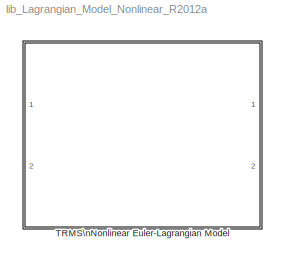
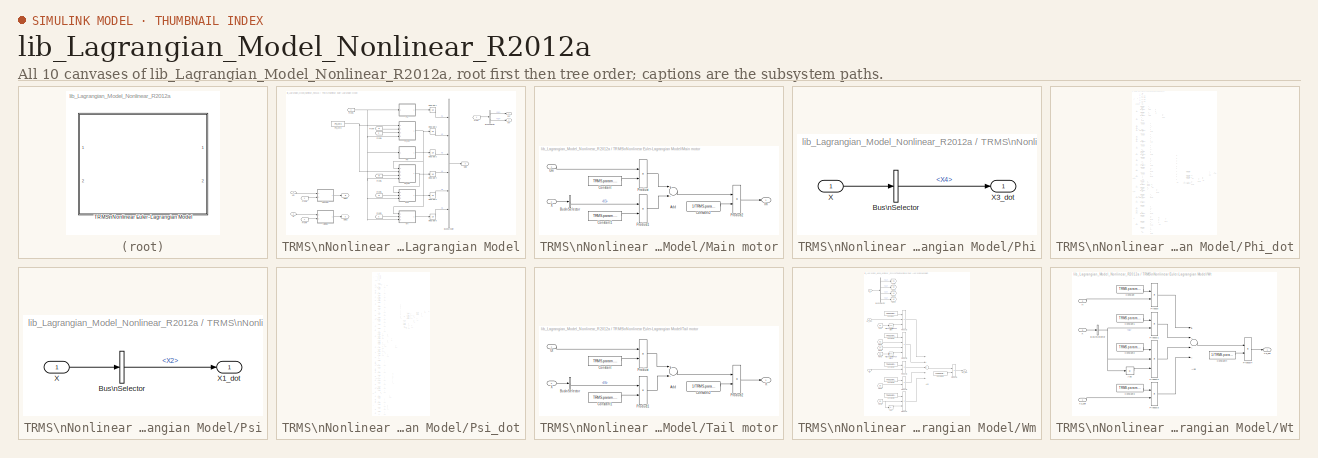
[diagram: thumbnail index - all 10 canvases of the model, root first then tree order]
MODEL lib_Lagrangian_Model_Nonlinear_R2012a
KIND library
BLOCK [SubSystem] TRMS\nNonlinear Euler-Lagrangian Model
  FunctionWithSeparateData = off
  MaskCallbackString = |||||
  MaskDescription = Nonlinear mathematical model of the TRMS based on the Euler-Lagrangian approach.\n\nReferences:\nRAO, Vidya S; BHAT, Akhila; MORALES-VIVIESCAS, Rafael M. Extended Kalman observer based Robust Control of one degree of freedom TRMS. Proceedings of the 12th Asian Control Conference (ASCC). Kitakyushu, Japan, June 9-12, 2019.\n\nTASTEMIROV, Azamat; LECCHINI-VISINTINI, Andrea; MORALES-VIVIESCAS, Rafael...<+150ch>
  MaskDisplay = image(imread('TRMS.jpg'));
  MaskEnableString = on,on,on,on,on,on
  MaskHideContents = off
  MaskIconFrame = on
  MaskIconOpaque = opaque-with-ports
  MaskIconRotate = none
  MaskIconUnits = autoscale
  MaskPortRotate = default
  MaskPromptString = Psi|Psi_dot|Phi|Phi_dot|Wm|Wt
  MaskStyleString = promote(Integrator1/InitialCondition),promote(Integrator2/InitialCondition),promote(Integrator3/InitialCondition),promote(Integrator4/InitialCondition),promote(Integrator5/InitialCondition),promote(Integrator6/InitialCondition)
  MaskToolTipString = on,on,on,on,on,on
  MaskTunableValueString = on,on,on,on,on,on
  MaskType = Physical model
  MaskValueString = 0|0|0|0|0|0
  MaskVariables = Psi_zero=@1;Psi_dot_zero=@2;Phi_zero=@3;Phi_dot_zero=@4;Wm_zero=@5;Wt_zero=@6;
  MaskVisibilityString = on,on,on,on,on,on
  MinAlgLoopOccurrences = off
  Opaque = off
  Ports = [2, 2]
  PropExecContextOutsideSubsystem = off
  RTWSystemCode = Auto
  RequestExecContextInheritance = off
  SID = 1
  Variant = off
BLOCK [BusCreator] TRMS\nNonlinear Euler-Lagrangian Model/Bus\nCreator
  DisplayOption = bar
  Inputs = 6
  Ports = [6, 1]
  SID = 4
BLOCK [BusSelector] TRMS\nNonlinear Euler-Lagrangian Model/Bus\nSelector
  OutputSignals = X1,X3
  Ports = [1, 2]
  SID = 5
BLOCK [From] TRMS\nNonlinear Euler-Lagrangian Model/From
  GotoTag = X
  SID = 6
BLOCK [From] TRMS\nNonlinear Euler-Lagrangian Model/From1
  GotoTag = X
  SID = 7
BLOCK [From] TRMS\nNonlinear Euler-Lagrangian Model/From2
  GotoTag = It
  SID = 8
BLOCK [From] TRMS\nNonlinear Euler-Lagrangian Model/From3
  GotoTag = X
  SID = 9
BLOCK [From] TRMS\nNonlinear Euler-Lagrangian Model/From4
  GotoTag = X
  SID = 10
BLOCK [From] TRMS\nNonlinear Euler-Lagrangian Model/From5
  GotoTag = Im
  SID = 11
BLOCK [From] TRMS\nNonlinear Euler-Lagrangian Model/From6
  GotoTag = Im
  SID = 12
BLOCK [From] TRMS\nNonlinear Euler-Lagrangian Model/From7
  GotoTag = Im
  SID = 13
BLOCK [From] TRMS\nNonlinear Euler-Lagrangian Model/From8
  GotoTag = It
  SID = 14
BLOCK [Goto] TRMS\nNonlinear Euler-Lagrangian Model/Goto
  GotoTag = X
  SID = 15
BLOCK [Goto] TRMS\nNonlinear Euler-Lagrangian Model/Goto1
  GotoTag = Im
  SID = 16
BLOCK [Goto] TRMS\nNonlinear Euler-Lagrangian Model/Goto2
  GotoTag = It
  SID = 17
BLOCK [Integrator] TRMS\nNonlinear Euler-Lagrangian Model/Integrator1
  ContinuousStateAttributes = 'Psi'
  InitialCondition = Psi_zero
  Ports = [1, 1]
  SID = 18
BLOCK [Integrator] TRMS\nNonlinear Euler-Lagrangian Model/Integrator2
  ContinuousStateAttributes = 'Psi_dot'
  InitialCondition = Psi_dot_zero
  Ports = [1, 1]
  SID = 19
BLOCK [Integrator] TRMS\nNonlinear Euler-Lagrangian Model/Integrator3
  ContinuousStateAttributes = 'Phi'
  InitialCondition = Phi_zero
  Ports = [1, 1]
  SID = 20
BLOCK [Integrator] TRMS\nNonlinear Euler-Lagrangian Model/Integrator4
  ContinuousStateAttributes = 'Phi_dot'
  InitialCondition = Phi_dot_zero
  Ports = [1, 1]
  SID = 21
BLOCK [Integrator] TRMS\nNonlinear Euler-Lagrangian Model/Integrator5
  ContinuousStateAttributes = 'Wm'
  InitialCondition = Wm_zero
  Ports = [1, 1]
  SID = 22
BLOCK [Integrator] TRMS\nNonlinear Euler-Lagrangian Model/Integrator6
  ContinuousStateAttributes = 'Wt'
  InitialCondition = Wt_zero
  Ports = [1, 1]
  SID = 23
BLOCK [SubSystem] TRMS\nNonlinear Euler-Lagrangian Model/Main motor
  FunctionWithSeparateData = off
  MaskHideContents = off
  MinAlgLoopOccurrences = off
  Opaque = off
  Ports = [2, 1]
  PropExecContextOutsideSubsystem = off
  RTWSystemCode = Auto
  RequestExecContextInheritance = off
  SID = 24
  Variant = off
BLOCK [Sum] TRMS\nNonlinear Euler-Lagrangian Model/Main motor/Add
  InputSameDT = off
  Inputs = +-
  OutDataTypeStr = Inherit: Inherit via internal rule
  Ports = [2, 1]
  SID = 27
  SaturateOnIntegerOverflow = off
BLOCK [BusSelector] TRMS\nNonlinear Euler-Lagrangian Model/Main motor/Bus\nSelector
  OutputSignals = X5
  Ports = [1, 1]
  SID = 28
BLOCK [Constant] TRMS\nNonlinear Euler-Lagrangian Model/Main motor/Constant
  SID = 29
  Value = TRMS.param.kum
BLOCK [Constant] TRMS\nNonlinear Euler-Lagrangian Model/Main motor/Constant1
  SID = 30
  Value = TRMS.param.kvm
BLOCK [Constant] TRMS\nNonlinear Euler-Lagrangian Model/Main motor/Constant2
  SID = 31
  Value = 1/TRMS.param.Rm
BLOCK [Outport] TRMS\nNonlinear Euler-Lagrangian Model/Main motor/Im
  IconDisplay = Port number
  SID = 35
BLOCK [Product] TRMS\nNonlinear Euler-Lagrangian Model/Main motor/Product
  InputSameDT = off
  OutDataTypeStr = Inherit: Inherit via internal rule
  Ports = [2, 1]
  RndMeth = Floor
  SID = 32
  SaturateOnIntegerOverflow = off
BLOCK [Product] TRMS\nNonlinear Euler-Lagrangian Model/Main motor/Product1
  InputSameDT = off
  OutDataTypeStr = Inherit: Inherit via internal rule
  Ports = [2, 1]
  RndMeth = Floor
  SID = 33
  SaturateOnIntegerOverflow = off
BLOCK [Product] TRMS\nNonlinear Euler-Lagrangian Model/Main motor/Product2
  InputSameDT = off
  OutDataTypeStr = Inherit: Inherit via internal rule
  Ports = [2, 1]
  RndMeth = Floor
  SID = 34
  SaturateOnIntegerOverflow = off
BLOCK [Inport] TRMS\nNonlinear Euler-Lagrangian Model/Main motor/Um
  IconDisplay = Port number
  SID = 25
BLOCK [Inport] TRMS\nNonlinear Euler-Lagrangian Model/Main motor/X
  IconDisplay = Port number
  Port = 2
  SID = 26
BLOCK [SubSystem] TRMS\nNonlinear Euler-Lagrangian Model/Phi
  FunctionWithSeparateData = off
  MaskHideContents = off
  MinAlgLoopOccurrences = off
  Opaque = off
  Ports = [1, 1]
  PropExecContextOutsideSubsystem = off
  RTWSystemCode = Auto
  RequestExecContextInheritance = off
  SID = 36
  Variant = off
BLOCK [BusSelector] TRMS\nNonlinear Euler-Lagrangian Model/Phi/Bus\nSelector
  OutputSignals = X4
  Ports = [1, 1]
  SID = 38
BLOCK [Inport] TRMS\nNonlinear Euler-Lagrangian Model/Phi/X
  IconDisplay = Port number
  SID = 37
BLOCK [Outport] TRMS\nNonlinear Euler-Lagrangian Model/Phi/X3_dot
  IconDisplay = Port number
  SID = 39
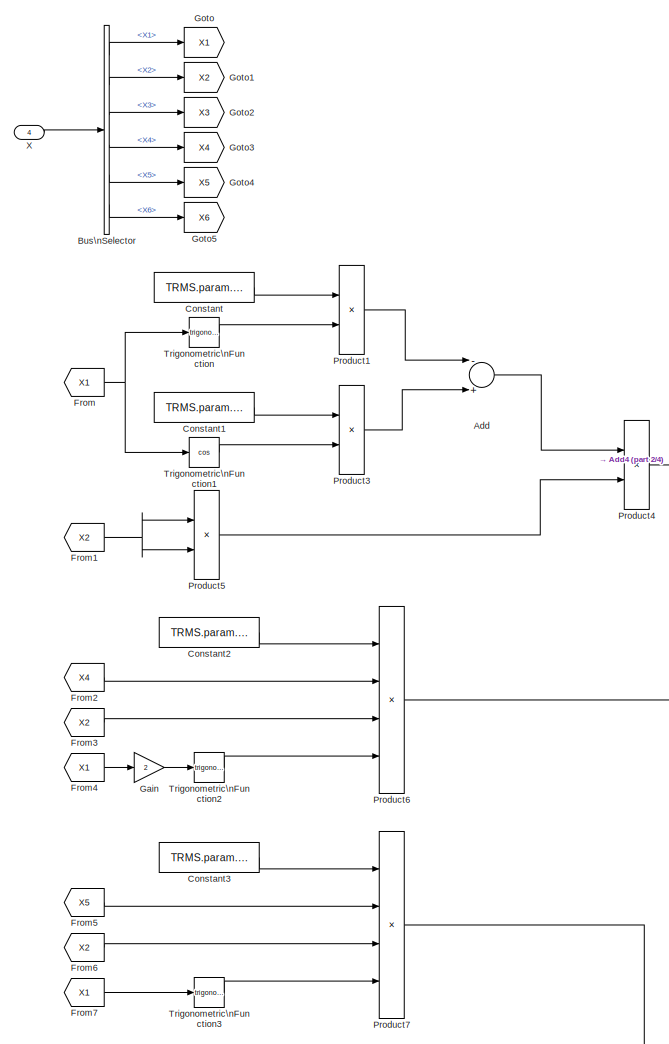
[diagram: TRMS\nNonlinear Euler-Lagrangian Model/Phi_dot - part 1/4, top left region]
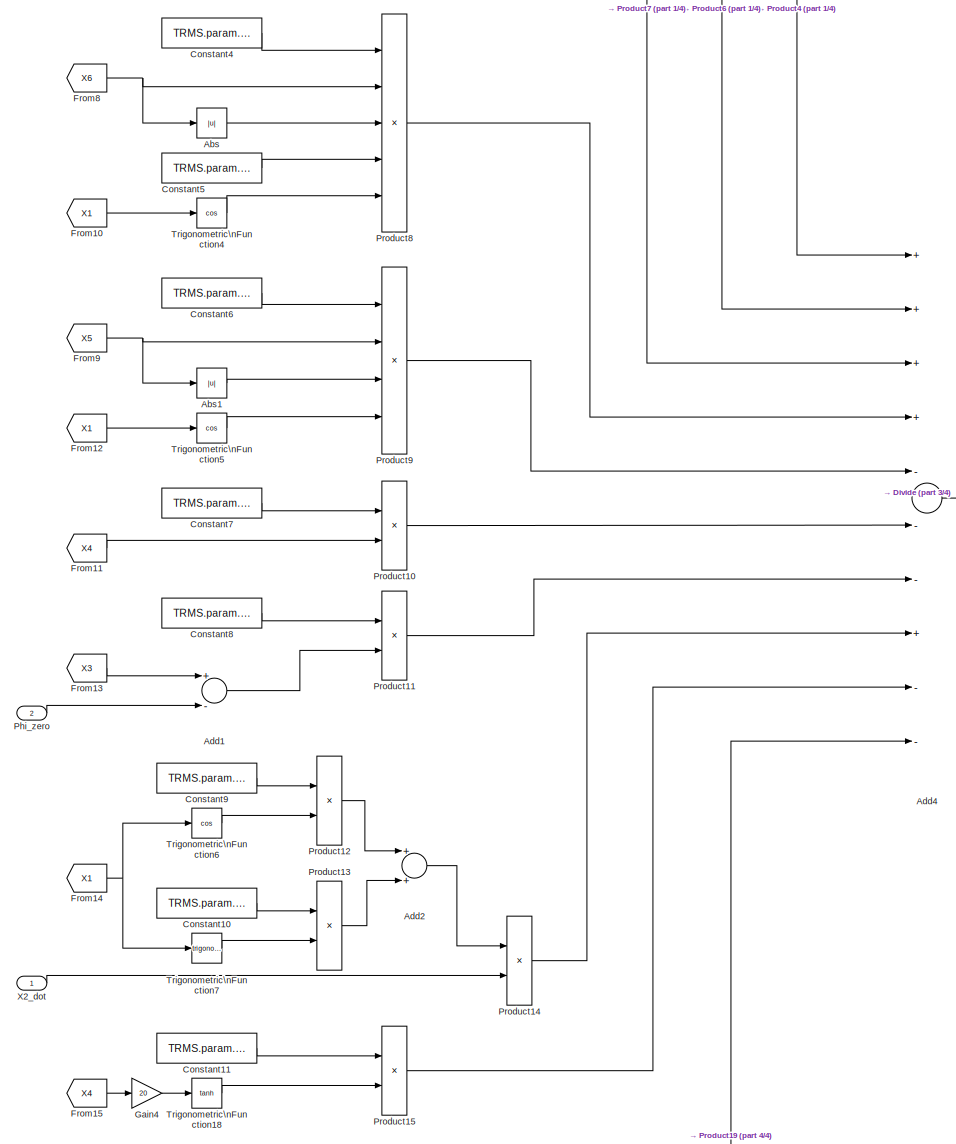
[diagram: TRMS\nNonlinear Euler-Lagrangian Model/Phi_dot - part 2/4, middle left region]
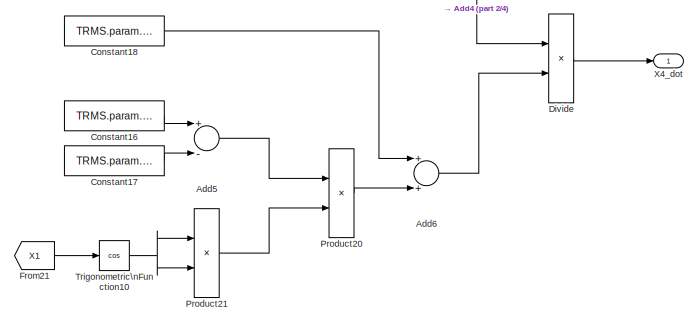
[diagram: TRMS\nNonlinear Euler-Lagrangian Model/Phi_dot - part 3/4, middle right region]
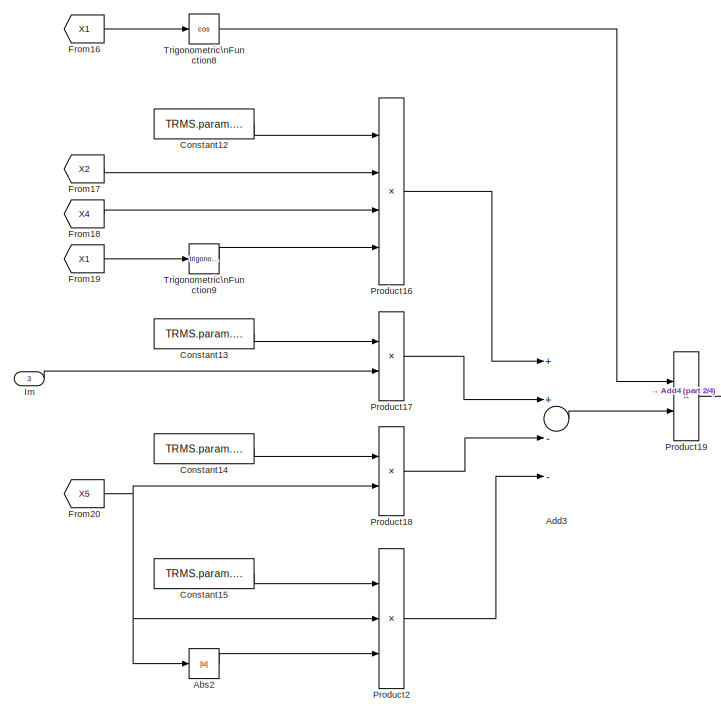
[diagram: TRMS\nNonlinear Euler-Lagrangian Model/Phi_dot - part 4/4, bottom left region]
BLOCK [SubSystem] TRMS\nNonlinear Euler-Lagrangian Model/Phi_dot
  FunctionWithSeparateData = off
  MaskHideContents = off
  MinAlgLoopOccurrences = off
  Opaque = off
  Ports = [4, 1]
  PropExecContextOutsideSubsystem = off
  RTWSystemCode = Auto
  RequestExecContextInheritance = off
  SID = 40
  Variant = off
BLOCK [Abs] TRMS\nNonlinear Euler-Lagrangian Model/Phi_dot/Abs
  SID = 45
  SaturateOnIntegerOverflow = off
BLOCK [Abs] TRMS\nNonlinear Euler-Lagrangian Model/Phi_dot/Abs1
  SID = 46
  SaturateOnIntegerOverflow = off
BLOCK [Abs] TRMS\nNonlinear Euler-Lagrangian Model/Phi_dot/Abs2
  SID = 47
  SaturateOnIntegerOverflow = off
BLOCK [Sum] TRMS\nNonlinear Euler-Lagrangian Model/Phi_dot/Add
  InputSameDT = off
  Inputs = -+
  OutDataTypeStr = Inherit: Inherit via internal rule
  Ports = [2, 1]
  SID = 48
  SaturateOnIntegerOverflow = off
BLOCK [Sum] TRMS\nNonlinear Euler-Lagrangian Model/Phi_dot/Add1
  InputSameDT = off
  Inputs = +-
  OutDataTypeStr = Inherit: Inherit via internal rule
  Ports = [2, 1]
  SID = 49
  SaturateOnIntegerOverflow = off
BLOCK [Sum] TRMS\nNonlinear Euler-Lagrangian Model/Phi_dot/Add2
  InputSameDT = off
  OutDataTypeStr = Inherit: Inherit via internal rule
  Ports = [2, 1]
  SID = 50
  SaturateOnIntegerOverflow = off
BLOCK [Sum] TRMS\nNonlinear Euler-Lagrangian Model/Phi_dot/Add3
  InputSameDT = off
  Inputs = ++--
  OutDataTypeStr = Inherit: Inherit via internal rule
  Ports = [4, 1]
  SID = 51
  SaturateOnIntegerOverflow = off
BLOCK [Sum] TRMS\nNonlinear Euler-Lagrangian Model/Phi_dot/Add4
  InputSameDT = off
  Inputs = ++++---+--
  OutDataTypeStr = Inherit: Inherit via internal rule
  Ports = [10, 1]
  SID = 52
  SaturateOnIntegerOverflow = off
BLOCK [Sum] TRMS\nNonlinear Euler-Lagrangian Model/Phi_dot/Add5
  InputSameDT = off
  Inputs = +-
  OutDataTypeStr = Inherit: Inherit via internal rule
  Ports = [2, 1]
  SID = 53
  SaturateOnIntegerOverflow = off
BLOCK [Sum] TRMS\nNonlinear Euler-Lagrangian Model/Phi_dot/Add6
  InputSameDT = off
  OutDataTypeStr = Inherit: Inherit via internal rule
  Ports = [2, 1]
  SID = 54
  SaturateOnIntegerOverflow = off
BLOCK [BusSelector] TRMS\nNonlinear Euler-Lagrangian Model/Phi_dot/Bus\nSelector
  OutputSignals = X1,X2,X3,X4,X5,X6
  Ports = [1, 6]
  SID = 55
BLOCK [Constant] TRMS\nNonlinear Euler-Lagrangian Model/Phi_dot/Constant
  SID = 56
  Value = TRMS.param.Hz
BLOCK [Constant] TRMS\nNonlinear Euler-Lagrangian Model/Phi_dot/Constant1
  SID = 57
  Value = TRMS.param.Hy
BLOCK [Constant] TRMS\nNonlinear Euler-Lagrangian Model/Phi_dot/Constant10
  SID = 58
  Value = TRMS.param.Hy
BLOCK [Constant] TRMS\nNonlinear Euler-Lagrangian Model/Phi_dot/Constant11
  SID = 59
  Value = TRMS.param.fcphi
BLOCK [Constant] TRMS\nNonlinear Euler-Lagrangian Model/Phi_dot/Constant12
  SID = 60
  Value = TRMS.param.Im1
BLOCK [Constant] TRMS\nNonlinear Euler-Lagrangian Model/Phi_dot/Constant13
  SID = 61
  Value = TRMS.param.ktm
BLOCK [Constant] TRMS\nNonlinear Euler-Lagrangian Model/Phi_dot/Constant14
  SID = 62
  Value = TRMS.param.fvm
BLOCK [Constant] TRMS\nNonlinear Euler-Lagrangian Model/Phi_dot/Constant15
  SID = 63
  Value = TRMS.param.Crm
BLOCK [Constant] TRMS\nNonlinear Euler-Lagrangian Model/Phi_dot/Constant16
  SID = 64
  Value = TRMS.param.Ic
BLOCK [Constant] TRMS\nNonlinear Euler-Lagrangian Model/Phi_dot/Constant17
  SID = 65
  Value = TRMS.param.Im1
BLOCK [Constant] TRMS\nNonlinear Euler-Lagrangian Model/Phi_dot/Constant18
  SID = 66
  Value = TRMS.param.Iphi
BLOCK [Constant] TRMS\nNonlinear Euler-Lagrangian Model/Phi_dot/Constant2
  SID = 67
  Value = TRMS.param.Ic
BLOCK [Constant] TRMS\nNonlinear Euler-Lagrangian Model/Phi_dot/Constant3
  SID = 68
  Value = TRMS.param.Im1
BLOCK [Constant] TRMS\nNonlinear Euler-Lagrangian Model/Phi_dot/Constant4
  SID = 69
  Value = TRMS.param.Ctt
BLOCK [Constant] TRMS\nNonlinear Euler-Lagrangian Model/Phi_dot/Constant5
  SID = 70
  Value = TRMS.param.lt
BLOCK [Constant] TRMS\nNonlinear Euler-Lagrangian Model/Phi_dot/Constant6
  SID = 71
  Value = TRMS.param.Crm
BLOCK [Constant] TRMS\nNonlinear Euler-Lagrangian Model/Phi_dot/Constant7
  SID = 72
  Value = TRMS.param.fvphi
BLOCK [Constant] TRMS\nNonlinear Euler-Lagrangian Model/Phi_dot/Constant8
  SID = 73
  Value = TRMS.param.Cc
BLOCK [Constant] TRMS\nNonlinear Euler-Lagrangian Model/Phi_dot/Constant9
  SID = 74
  Value = TRMS.param.Hz
BLOCK [Product] TRMS\nNonlinear Euler-Lagrangian Model/Phi_dot/Divide
  InputSameDT = off
  Inputs = */
  OutDataTypeStr = Inherit: Inherit via internal rule
  Ports = [2, 1]
  RndMeth = Floor
  SID = 75
  SaturateOnIntegerOverflow = off
BLOCK [From] TRMS\nNonlinear Euler-Lagrangian Model/Phi_dot/From
  GotoTag = X1
  SID = 76
BLOCK [From] TRMS\nNonlinear Euler-Lagrangian Model/Phi_dot/From1
  GotoTag = X2
  SID = 77
BLOCK [From] TRMS\nNonlinear Euler-Lagrangian Model/Phi_dot/From10
  GotoTag = X1
  SID = 78
BLOCK [From] TRMS\nNonlinear Euler-Lagrangian Model/Phi_dot/From11
  GotoTag = X4
  SID = 79
BLOCK [From] TRMS\nNonlinear Euler-Lagrangian Model/Phi_dot/From12
  GotoTag = X1
  SID = 80
BLOCK [From] TRMS\nNonlinear Euler-Lagrangian Model/Phi_dot/From13
  GotoTag = X3
  SID = 81
BLOCK [From] TRMS\nNonlinear Euler-Lagrangian Model/Phi_dot/From14
  GotoTag = X1
  SID = 82
BLOCK [From] TRMS\nNonlinear Euler-Lagrangian Model/Phi_dot/From15
  GotoTag = X4
  SID = 83
BLOCK [From] TRMS\nNonlinear Euler-Lagrangian Model/Phi_dot/From16
  GotoTag = X1
  SID = 84
BLOCK [From] TRMS\nNonlinear Euler-Lagrangian Model/Phi_dot/From17
  GotoTag = X2
  SID = 85
BLOCK [From] TRMS\nNonlinear Euler-Lagrangian Model/Phi_dot/From18
  GotoTag = X4
  SID = 86
BLOCK [From] TRMS\nNonlinear Euler-Lagrangian Model/Phi_dot/From19
  GotoTag = X1
  SID = 87
BLOCK [From] TRMS\nNonlinear Euler-Lagrangian Model/Phi_dot/From2
  GotoTag = X4
  SID = 88
BLOCK [From] TRMS\nNonlinear Euler-Lagrangian Model/Phi_dot/From20
  GotoTag = X5
  SID = 89
BLOCK [From] TRMS\nNonlinear Euler-Lagrangian Model/Phi_dot/From21
  GotoTag = X1
  SID = 90
BLOCK [From] TRMS\nNonlinear Euler-Lagrangian Model/Phi_dot/From3
  GotoTag = X2
  SID = 91
BLOCK [From] TRMS\nNonlinear Euler-Lagrangian Model/Phi_dot/From4
  GotoTag = X1
  SID = 92
BLOCK [From] TRMS\nNonlinear Euler-Lagrangian Model/Phi_dot/From5
  GotoTag = X5
  SID = 93
BLOCK [From] TRMS\nNonlinear Euler-Lagrangian Model/Phi_dot/From6
  GotoTag = X2
  SID = 94
BLOCK [From] TRMS\nNonlinear Euler-Lagrangian Model/Phi_dot/From7
  GotoTag = X1
  SID = 95
BLOCK [From] TRMS\nNonlinear Euler-Lagrangian Model/Phi_dot/From8
  GotoTag = X6
  SID = 96
BLOCK [From] TRMS\nNonlinear Euler-Lagrangian Model/Phi_dot/From9
  GotoTag = X5
  SID = 97
BLOCK [Gain] TRMS\nNonlinear Euler-Lagrangian Model/Phi_dot/Gain
  Gain = 2
  OutDataTypeStr = Inherit: Inherit via internal rule
  ParamDataTypeStr = Inherit: Inherit via internal rule
  SID = 98
  SaturateOnIntegerOverflow = off
BLOCK [Gain] TRMS\nNonlinear Euler-Lagrangian Model/Phi_dot/Gain4
  Gain = 20
  OutDataTypeStr = Inherit: Inherit via internal rule
  ParamDataTypeStr = Inherit: Inherit via internal rule
  SID = 399
  SaturateOnIntegerOverflow = off
BLOCK [Goto] TRMS\nNonlinear Euler-Lagrangian Model/Phi_dot/Goto
  GotoTag = X1
  SID = 99
BLOCK [Goto] TRMS\nNonlinear Euler-Lagrangian Model/Phi_dot/Goto1
  GotoTag = X2
  SID = 100
BLOCK [Goto] TRMS\nNonlinear Euler-Lagrangian Model/Phi_dot/Goto2
  GotoTag = X3
  SID = 101
BLOCK [Goto] TRMS\nNonlinear Euler-Lagrangian Model/Phi_dot/Goto3
  GotoTag = X4
  SID = 102
BLOCK [Goto] TRMS\nNonlinear Euler-Lagrangian Model/Phi_dot/Goto4
  GotoTag = X5
  SID = 103
BLOCK [Goto] TRMS\nNonlinear Euler-Lagrangian Model/Phi_dot/Goto5
  GotoTag = X6
  SID = 104
BLOCK [Inport] TRMS\nNonlinear Euler-Lagrangian Model/Phi_dot/Im
  IconDisplay = Port number
  Port = 3
  SID = 43
BLOCK [Inport] TRMS\nNonlinear Euler-Lagrangian Model/Phi_dot/Phi_zero
  IconDisplay = Port number
  Port = 2
  SID = 42
BLOCK [Product] TRMS\nNonlinear Euler-Lagrangian Model/Phi_dot/Product1
  InputSameDT = off
  OutDataTypeStr = Inherit: Inherit via internal rule
  Ports = [2, 1]
  RndMeth = Floor
  SID = 105
  SaturateOnIntegerOverflow = off
BLOCK [Product] TRMS\nNonlinear Euler-Lagrangian Model/Phi_dot/Product10
  InputSameDT = off
  OutDataTypeStr = Inherit: Inherit via internal rule
  Ports = [2, 1]
  RndMeth = Floor
  SID = 106
  SaturateOnIntegerOverflow = off
BLOCK [Product] TRMS\nNonlinear Euler-Lagrangian Model/Phi_dot/Product11
  InputSameDT = off
  OutDataTypeStr = Inherit: Inherit via internal rule
  Ports = [2, 1]
  RndMeth = Floor
  SID = 107
  SaturateOnIntegerOverflow = off
BLOCK [Product] TRMS\nNonlinear Euler-Lagrangian Model/Phi_dot/Product12
  InputSameDT = off
  OutDataTypeStr = Inherit: Inherit via internal rule
  Ports = [2, 1]
  RndMeth = Floor
  SID = 108
  SaturateOnIntegerOverflow = off
BLOCK [Product] TRMS\nNonlinear Euler-Lagrangian Model/Phi_dot/Product13
  InputSameDT = off
  OutDataTypeStr = Inherit: Inherit via internal rule
  Ports = [2, 1]
  RndMeth = Floor
  SID = 109
  SaturateOnIntegerOverflow = off
BLOCK [Product] TRMS\nNonlinear Euler-Lagrangian Model/Phi_dot/Product14
  InputSameDT = off
  OutDataTypeStr = Inherit: Inherit via internal rule
  Ports = [2, 1]
  RndMeth = Floor
  SID = 110
  SaturateOnIntegerOverflow = off
BLOCK [Product] TRMS\nNonlinear Euler-Lagrangian Model/Phi_dot/Product15
  InputSameDT = off
  OutDataTypeStr = Inherit: Inherit via internal rule
  Ports = [2, 1]
  RndMeth = Floor
  SID = 111
  SaturateOnIntegerOverflow = off
BLOCK [Product] TRMS\nNonlinear Euler-Lagrangian Model/Phi_dot/Product16
  InputSameDT = off
  Inputs = 4
  OutDataTypeStr = Inherit: Inherit via internal rule
  Ports = [4, 1]
  RndMeth = Floor
  SID = 112
  SaturateOnIntegerOverflow = off
BLOCK [Product] TRMS\nNonlinear Euler-Lagrangian Model/Phi_dot/Product17
  InputSameDT = off
  OutDataTypeStr = Inherit: Inherit via internal rule
  Ports = [2, 1]
  RndMeth = Floor
  SID = 113
  SaturateOnIntegerOverflow = off
BLOCK [Product] TRMS\nNonlinear Euler-Lagrangian Model/Phi_dot/Product18
  InputSameDT = off
  OutDataTypeStr = Inherit: Inherit via internal rule
  Ports = [2, 1]
  RndMeth = Floor
  SID = 114
  SaturateOnIntegerOverflow = off
BLOCK [Product] TRMS\nNonlinear Euler-Lagrangian Model/Phi_dot/Product19
  InputSameDT = off
  OutDataTypeStr = Inherit: Inherit via internal rule
  Ports = [2, 1]
  RndMeth = Floor
  SID = 115
  SaturateOnIntegerOverflow = off
BLOCK [Product] TRMS\nNonlinear Euler-Lagrangian Model/Phi_dot/Product2
  InputSameDT = off
  Inputs = 3
  OutDataTypeStr = Inherit: Inherit via internal rule
  Ports = [3, 1]
  RndMeth = Floor
  SID = 116
  SaturateOnIntegerOverflow = off
BLOCK [Product] TRMS\nNonlinear Euler-Lagrangian Model/Phi_dot/Product20
  InputSameDT = off
  OutDataTypeStr = Inherit: Inherit via internal rule
  Ports = [2, 1]
  RndMeth = Floor
  SID = 117
  SaturateOnIntegerOverflow = off
BLOCK [Product] TRMS\nNonlinear Euler-Lagrangian Model/Phi_dot/Product21
  InputSameDT = off
  OutDataTypeStr = Inherit: Inherit via internal rule
  Ports = [2, 1]
  RndMeth = Floor
  SID = 118
  SaturateOnIntegerOverflow = off
BLOCK [Product] TRMS\nNonlinear Euler-Lagrangian Model/Phi_dot/Product3
  InputSameDT = off
  OutDataTypeStr = Inherit: Inherit via internal rule
  Ports = [2, 1]
  RndMeth = Floor
  SID = 119
  SaturateOnIntegerOverflow = off
BLOCK [Product] TRMS\nNonlinear Euler-Lagrangian Model/Phi_dot/Product4
  InputSameDT = off
  OutDataTypeStr = Inherit: Inherit via internal rule
  Ports = [2, 1]
  RndMeth = Floor
  SID = 120
  SaturateOnIntegerOverflow = off
BLOCK [Product] TRMS\nNonlinear Euler-Lagrangian Model/Phi_dot/Product5
  InputSameDT = off
  OutDataTypeStr = Inherit: Inherit via internal rule
  Ports = [2, 1]
  RndMeth = Floor
  SID = 121
  SaturateOnIntegerOverflow = off
BLOCK [Product] TRMS\nNonlinear Euler-Lagrangian Model/Phi_dot/Product6
  InputSameDT = off
  Inputs = 4
  OutDataTypeStr = Inherit: Inherit via internal rule
  Ports = [4, 1]
  RndMeth = Floor
  SID = 122
  SaturateOnIntegerOverflow = off
BLOCK [Product] TRMS\nNonlinear Euler-Lagrangian Model/Phi_dot/Product7
  InputSameDT = off
  Inputs = 4
  OutDataTypeStr = Inherit: Inherit via internal rule
  Ports = [4, 1]
  RndMeth = Floor
  SID = 123
  SaturateOnIntegerOverflow = off
BLOCK [Product] TRMS\nNonlinear Euler-Lagrangian Model/Phi_dot/Product8
  InputSameDT = off
  Inputs = 5
  OutDataTypeStr = Inherit: Inherit via internal rule
  Ports = [5, 1]
  RndMeth = Floor
  SID = 124
  SaturateOnIntegerOverflow = off
BLOCK [Product] TRMS\nNonlinear Euler-Lagrangian Model/Phi_dot/Product9
  InputSameDT = off
  Inputs = 4
  OutDataTypeStr = Inherit: Inherit via internal rule
  Ports = [4, 1]
  RndMeth = Floor
  SID = 125
  SaturateOnIntegerOverflow = off
BLOCK [Trigonometry] TRMS\nNonlinear Euler-Lagrangian Model/Phi_dot/Trigonometric\nFunction
  Ports = [1, 1]
  SID = 127
BLOCK [Trigonometry] TRMS\nNonlinear Euler-Lagrangian Model/Phi_dot/Trigonometric\nFunction1
  Operator = cos
  Ports = [1, 1]
  SID = 128
BLOCK [Trigonometry] TRMS\nNonlinear Euler-Lagrangian Model/Phi_dot/Trigonometric\nFunction10
  Operator = cos
  Ports = [1, 1]
  SID = 129
BLOCK [Trigonometry] TRMS\nNonlinear Euler-Lagrangian Model/Phi_dot/Trigonometric\nFunction18
  Operator = tanh
  Ports = [1, 1]
  SID = 400
BLOCK [Trigonometry] TRMS\nNonlinear Euler-Lagrangian Model/Phi_dot/Trigonometric\nFunction2
  Ports = [1, 1]
  SID = 130
BLOCK [Trigonometry] TRMS\nNonlinear Euler-Lagrangian Model/Phi_dot/Trigonometric\nFunction3
  Ports = [1, 1]
  SID = 131
BLOCK [Trigonometry] TRMS\nNonlinear Euler-Lagrangian Model/Phi_dot/Trigonometric\nFunction4
  Operator = cos
  Ports = [1, 1]
  SID = 132
BLOCK [Trigonometry] TRMS\nNonlinear Euler-Lagrangian Model/Phi_dot/Trigonometric\nFunction5
  Operator = cos
  Ports = [1, 1]
  SID = 133
BLOCK [Trigonometry] TRMS\nNonlinear Euler-Lagrangian Model/Phi_dot/Trigonometric\nFunction6
  Operator = cos
  Ports = [1, 1]
  SID = 134
BLOCK [Trigonometry] TRMS\nNonlinear Euler-Lagrangian Model/Phi_dot/Trigonometric\nFunction7
  Ports = [1, 1]
  SID = 135
BLOCK [Trigonometry] TRMS\nNonlinear Euler-Lagrangian Model/Phi_dot/Trigonometric\nFunction8
  Operator = cos
  Ports = [1, 1]
  SID = 136
BLOCK [Trigonometry] TRMS\nNonlinear Euler-Lagrangian Model/Phi_dot/Trigonometric\nFunction9
  Ports = [1, 1]
  SID = 137
BLOCK [Inport] TRMS\nNonlinear Euler-Lagrangian Model/Phi_dot/X
  IconDisplay = Port number
  Port = 4
  SID = 44
BLOCK [Inport] TRMS\nNonlinear Euler-Lagrangian Model/Phi_dot/X2_dot
  IconDisplay = Port number
  SID = 41
BLOCK [Outport] TRMS\nNonlinear Euler-Lagrangian Model/Phi_dot/X4_dot
  IconDisplay = Port number
  SID = 138
BLOCK [Constant] TRMS\nNonlinear Euler-Lagrangian Model/Phi_zero
  SID = 139
  Value = Phi_zero
BLOCK [SubSystem] TRMS\nNonlinear Euler-Lagrangian Model/Psi
  FunctionWithSeparateData = off
  MaskHideContents = off
  MinAlgLoopOccurrences = off
  Opaque = off
  Ports = [1, 1]
  PropExecContextOutsideSubsystem = off
  RTWSystemCode = Auto
  RequestExecContextInheritance = off
  SID = 140
  Variant = off
BLOCK [BusSelector] TRMS\nNonlinear Euler-Lagrangian Model/Psi/Bus\nSelector
  OutputSignals = X2
  Ports = [1, 1]
  SID = 142
BLOCK [Inport] TRMS\nNonlinear Euler-Lagrangian Model/Psi/X
  IconDisplay = Port number
  SID = 141
BLOCK [Outport] TRMS\nNonlinear Euler-Lagrangian Model/Psi/X1_dot
  IconDisplay = Port number
  SID = 143
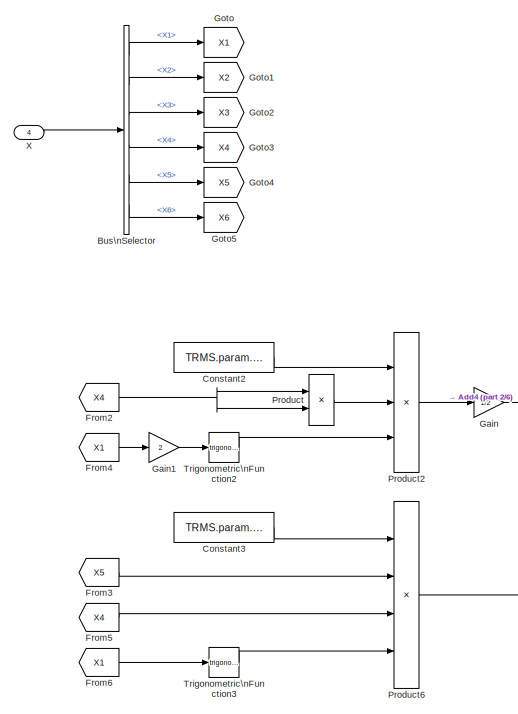
[diagram: TRMS\nNonlinear Euler-Lagrangian Model/Psi_dot - part 1/6, top left region]
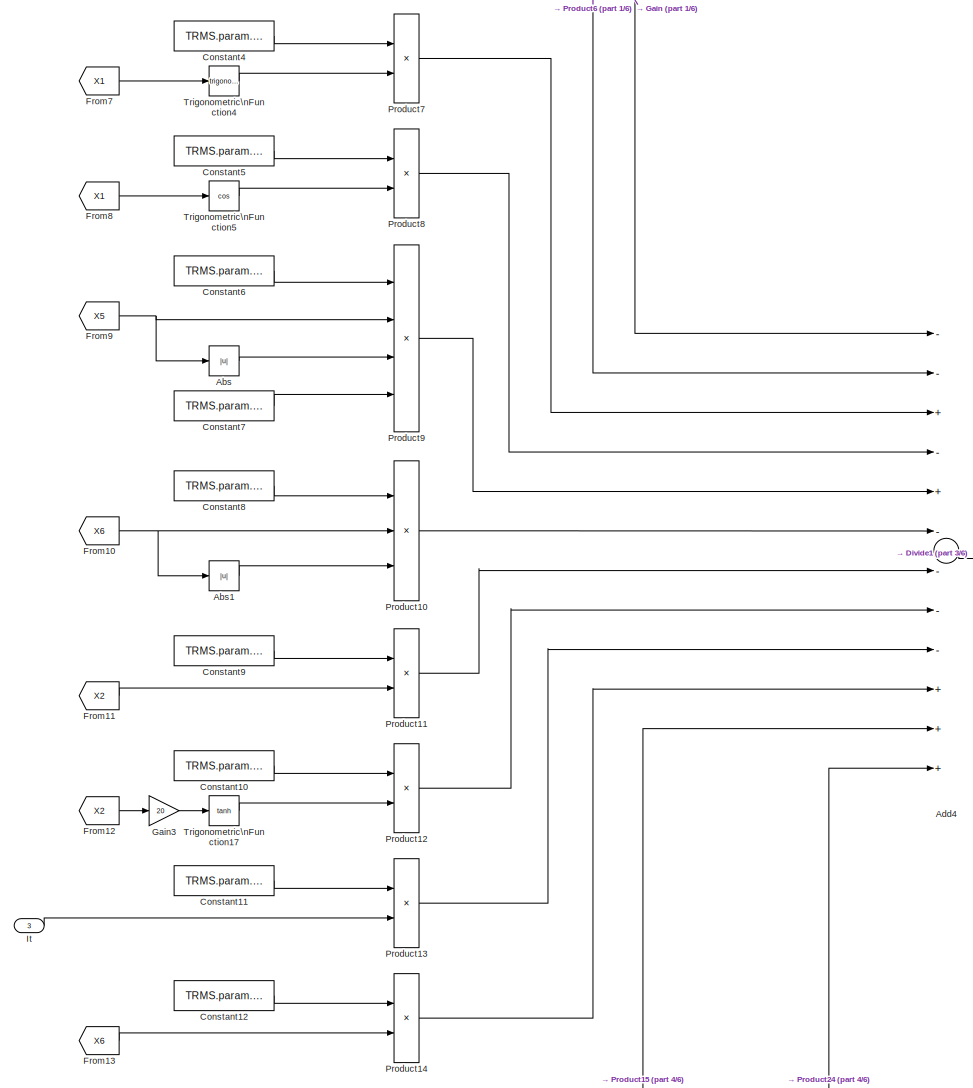
[diagram: TRMS\nNonlinear Euler-Lagrangian Model/Psi_dot - part 2/6, top left region]
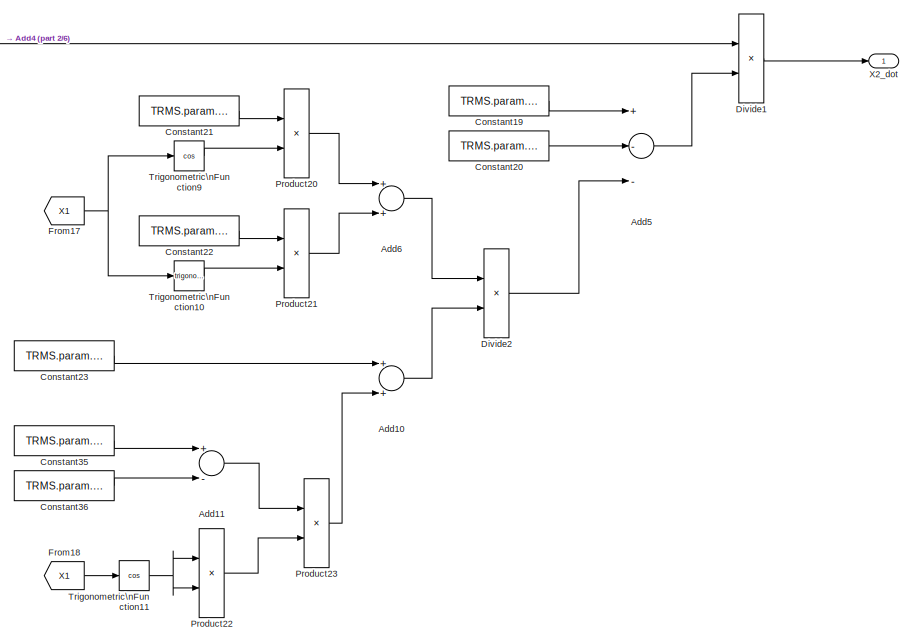
[diagram: TRMS\nNonlinear Euler-Lagrangian Model/Psi_dot - part 3/6, top right region]
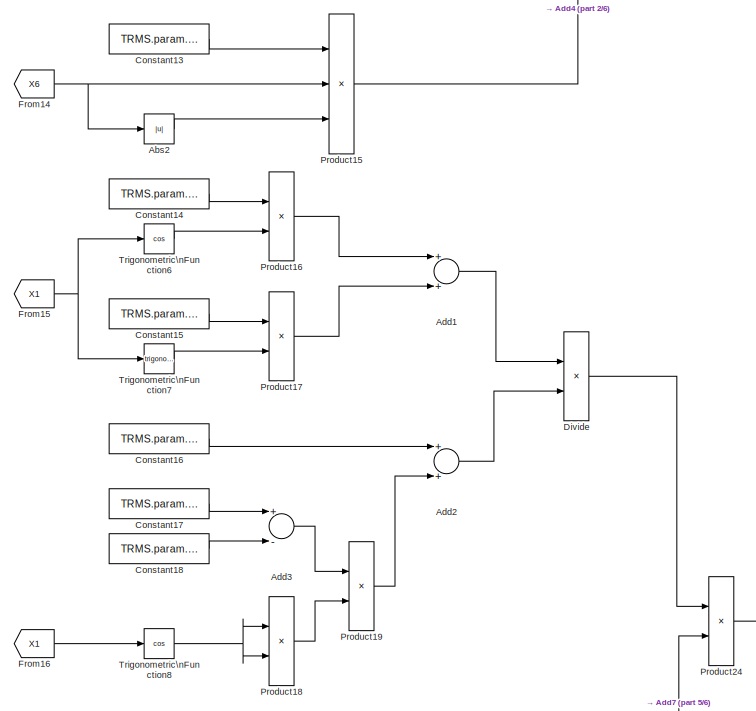
[diagram: TRMS\nNonlinear Euler-Lagrangian Model/Psi_dot - part 4/6, middle left region]
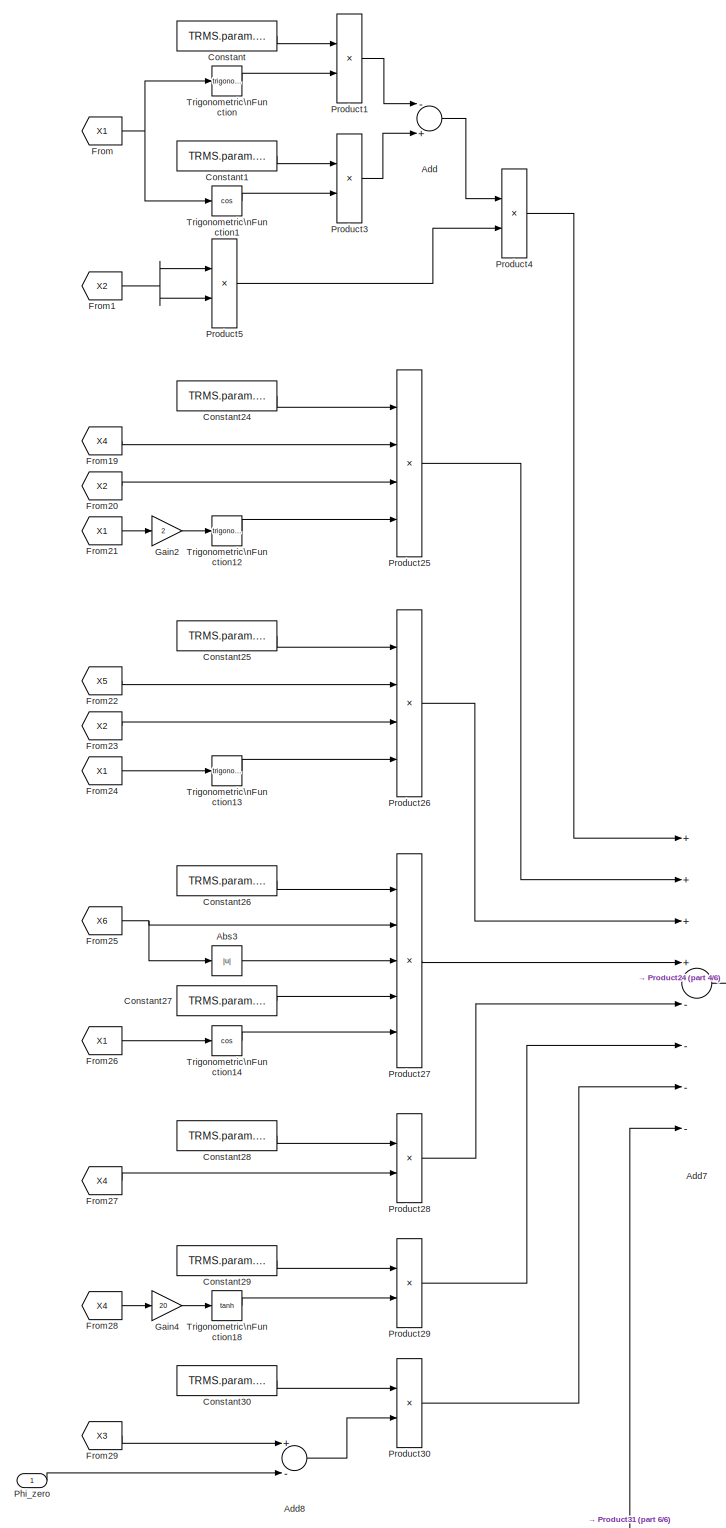
[diagram: TRMS\nNonlinear Euler-Lagrangian Model/Psi_dot - part 5/6, bottom left region]
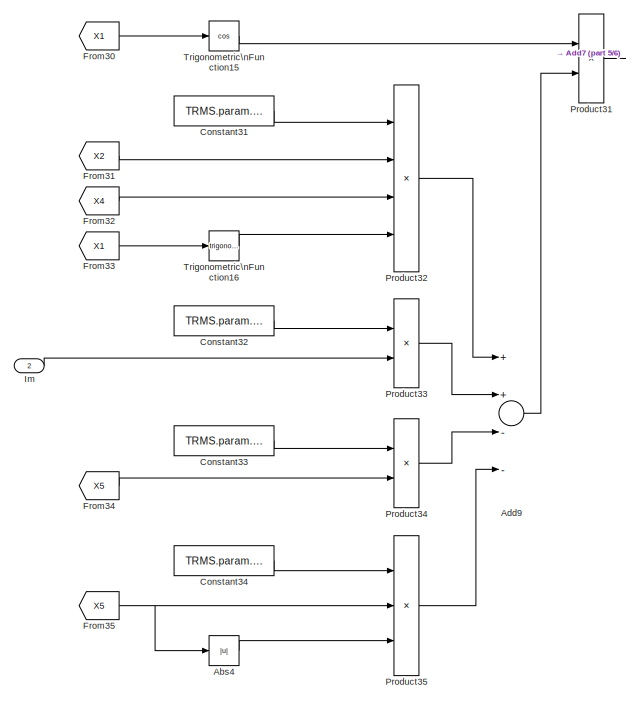
[diagram: TRMS\nNonlinear Euler-Lagrangian Model/Psi_dot - part 6/6, bottom left region]
BLOCK [SubSystem] TRMS\nNonlinear Euler-Lagrangian Model/Psi_dot
  FunctionWithSeparateData = off
  MaskHideContents = off
  MinAlgLoopOccurrences = off
  Opaque = off
  Ports = [4, 1]
  PropExecContextOutsideSubsystem = off
  RTWSystemCode = Auto
  RequestExecContextInheritance = off
  SID = 144
  Variant = off
BLOCK [Abs] TRMS\nNonlinear Euler-Lagrangian Model/Psi_dot/Abs
  SID = 149
  SaturateOnIntegerOverflow = off
BLOCK [Abs] TRMS\nNonlinear Euler-Lagrangian Model/Psi_dot/Abs1
  SID = 150
  SaturateOnIntegerOverflow = off
BLOCK [Abs] TRMS\nNonlinear Euler-Lagrangian Model/Psi_dot/Abs2
  SID = 151
  SaturateOnIntegerOverflow = off
BLOCK [Abs] TRMS\nNonlinear Euler-Lagrangian Model/Psi_dot/Abs3
  SID = 152
  SaturateOnIntegerOverflow = off
BLOCK [Abs] TRMS\nNonlinear Euler-Lagrangian Model/Psi_dot/Abs4
  SID = 153
  SaturateOnIntegerOverflow = off
BLOCK [Sum] TRMS\nNonlinear Euler-Lagrangian Model/Psi_dot/Add
  InputSameDT = off
  Inputs = -+
  OutDataTypeStr = Inherit: Inherit via internal rule
  Ports = [2, 1]
  SID = 154
  SaturateOnIntegerOverflow = off
BLOCK [Sum] TRMS\nNonlinear Euler-Lagrangian Model/Psi_dot/Add1
  InputSameDT = off
  OutDataTypeStr = Inherit: Inherit via internal rule
  Ports = [2, 1]
  SID = 155
  SaturateOnIntegerOverflow = off
BLOCK [Sum] TRMS\nNonlinear Euler-Lagrangian Model/Psi_dot/Add10
  InputSameDT = off
  OutDataTypeStr = Inherit: Inherit via internal rule
  Ports = [2, 1]
  SID = 374
  SaturateOnIntegerOverflow = off
BLOCK [Sum] TRMS\nNonlinear Euler-Lagrangian Model/Psi_dot/Add11
  InputSameDT = off
  Inputs = +-
  OutDataTypeStr = Inherit: Inherit via internal rule
  Ports = [2, 1]
  SID = 375
  SaturateOnIntegerOverflow = off
BLOCK [Sum] TRMS\nNonlinear Euler-Lagrangian Model/Psi_dot/Add2
  InputSameDT = off
  OutDataTypeStr = Inherit: Inherit via internal rule
  Ports = [2, 1]
  SID = 156
  SaturateOnIntegerOverflow = off
BLOCK [Sum] TRMS\nNonlinear Euler-Lagrangian Model/Psi_dot/Add3
  InputSameDT = off
  Inputs = +-
  OutDataTypeStr = Inherit: Inherit via internal rule
  Ports = [2, 1]
  SID = 157
  SaturateOnIntegerOverflow = off
BLOCK [Sum] TRMS\nNonlinear Euler-Lagrangian Model/Psi_dot/Add4
  InputSameDT = off
  Inputs = --+-+----+++
  OutDataTypeStr = Inherit: Inherit via internal rule
  Ports = [12, 1]
  SID = 158
  SaturateOnIntegerOverflow = off
BLOCK [Sum] TRMS\nNonlinear Euler-Lagrangian Model/Psi_dot/Add5
  InputSameDT = off
  Inputs = +--
  OutDataTypeStr = Inherit: Inherit via internal rule
  Ports = [3, 1]
  SID = 352
  SaturateOnIntegerOverflow = off
BLOCK [Sum] TRMS\nNonlinear Euler-Lagrangian Model/Psi_dot/Add6
  InputSameDT = off
  OutDataTypeStr = Inherit: Inherit via internal rule
  Ports = [2, 1]
  SID = 373
  SaturateOnIntegerOverflow = off
BLOCK [Sum] TRMS\nNonlinear Euler-Lagrangian Model/Psi_dot/Add7
  InputSameDT = off
  Inputs = ++++----
  OutDataTypeStr = Inherit: Inherit via internal rule
  Ports = [8, 1]
  SID = 159
  SaturateOnIntegerOverflow = off
BLOCK [Sum] TRMS\nNonlinear Euler-Lagrangian Model/Psi_dot/Add8
  InputSameDT = off
  Inputs = +-
  OutDataTypeStr = Inherit: Inherit via internal rule
  Ports = [2, 1]
  SID = 160
  SaturateOnIntegerOverflow = off
BLOCK [Sum] TRMS\nNonlinear Euler-Lagrangian Model/Psi_dot/Add9
  InputSameDT = off
  Inputs = ++--
  OutDataTypeStr = Inherit: Inherit via internal rule
  Ports = [4, 1]
  SID = 161
  SaturateOnIntegerOverflow = off
BLOCK [BusSelector] TRMS\nNonlinear Euler-Lagrangian Model/Psi_dot/Bus\nSelector
  OutputSignals = X1,X2,X3,X4,X5,X6
  Ports = [1, 6]
  SID = 162
BLOCK [Constant] TRMS\nNonlinear Euler-Lagrangian Model/Psi_dot/Constant
  SID = 163
  Value = TRMS.param.Hz
BLOCK [Constant] TRMS\nNonlinear Euler-Lagrangian Model/Psi_dot/Constant1
  SID = 164
  Value = TRMS.param.Hy
BLOCK [Constant] TRMS\nNonlinear Euler-Lagrangian Model/Psi_dot/Constant10
  SID = 165
  Value = TRMS.param.fcpsi
BLOCK [Constant] TRMS\nNonlinear Euler-Lagrangian Model/Psi_dot/Constant11
  SID = 166
  Value = TRMS.param.ktt
BLOCK [Constant] TRMS\nNonlinear Euler-Lagrangian Model/Psi_dot/Constant12
  SID = 167
  Value = TRMS.param.fvt
BLOCK [Constant] TRMS\nNonlinear Euler-Lagrangian Model/Psi_dot/Constant13
  SID = 168
  Value = TRMS.param.Crt
BLOCK [Constant] TRMS\nNonlinear Euler-Lagrangian Model/Psi_dot/Constant14
  SID = 169
  Value = TRMS.param.Hz
BLOCK [Constant] TRMS\nNonlinear Euler-Lagrangian Model/Psi_dot/Constant15
  SID = 170
  Value = TRMS.param.Hy
BLOCK [Constant] TRMS\nNonlinear Euler-Lagrangian Model/Psi_dot/Constant16
  SID = 171
  Value = TRMS.param.Iphi
BLOCK [Constant] TRMS\nNonlinear Euler-Lagrangian Model/Psi_dot/Constant17
  SID = 172
  Value = TRMS.param.Ic
BLOCK [Constant] TRMS\nNonlinear Euler-Lagrangian Model/Psi_dot/Constant18
  SID = 173
  Value = TRMS.param.Im1
BLOCK [Constant] TRMS\nNonlinear Euler-Lagrangian Model/Psi_dot/Constant19
  SID = 353
  Value = TRMS.param.Ipsi
BLOCK [Constant] TRMS\nNonlinear Euler-Lagrangian Model/Psi_dot/Constant2
  SID = 174
  Value = TRMS.param.Ic
BLOCK [Constant] TRMS\nNonlinear Euler-Lagrangian Model/Psi_dot/Constant20
  SID = 354
  Value = TRMS.param.It1
BLOCK [Constant] TRMS\nNonlinear Euler-Lagrangian Model/Psi_dot/Constant21
  SID = 376
  Value = TRMS.param.Hz
BLOCK [Constant] TRMS\nNonlinear Euler-Lagrangian Model/Psi_dot/Constant22
  SID = 377
  Value = TRMS.param.Hy
BLOCK [Constant] TRMS\nNonlinear Euler-Lagrangian Model/Psi_dot/Constant23
  SID = 378
  Value = TRMS.param.Iphi
BLOCK [Constant] TRMS\nNonlinear Euler-Lagrangian Model/Psi_dot/Constant24
  SID = 175
  Value = TRMS.param.Ic
BLOCK [Constant] TRMS\nNonlinear Euler-Lagrangian Model/Psi_dot/Constant25
  SID = 176
  Value = TRMS.param.Im1
BLOCK [Constant] TRMS\nNonlinear Euler-Lagrangian Model/Psi_dot/Constant26
  SID = 177
  Value = TRMS.param.Ctt
BLOCK [Constant] TRMS\nNonlinear Euler-Lagrangian Model/Psi_dot/Constant27
  SID = 178
  Value = TRMS.param.lt
BLOCK [Constant] TRMS\nNonlinear Euler-Lagrangian Model/Psi_dot/Constant28
  SID = 179
  Value = TRMS.param.fvphi
BLOCK [Constant] TRMS\nNonlinear Euler-Lagrangian Model/Psi_dot/Constant29
  SID = 180
  Value = TRMS.param.fcphi
BLOCK [Constant] TRMS\nNonlinear Euler-Lagrangian Model/Psi_dot/Constant3
  SID = 181
  Value = TRMS.param.Im1
BLOCK [Constant] TRMS\nNonlinear Euler-Lagrangian Model/Psi_dot/Constant30
  SID = 182
  Value = TRMS.param.Cc
BLOCK [Constant] TRMS\nNonlinear Euler-Lagrangian Model/Psi_dot/Constant31
  SID = 183
  Value = TRMS.param.Im1
BLOCK [Constant] TRMS\nNonlinear Euler-Lagrangian Model/Psi_dot/Constant32
  SID = 184
  Value = TRMS.param.ktm
BLOCK [Constant] TRMS\nNonlinear Euler-Lagrangian Model/Psi_dot/Constant33
  SID = 185
  Value = TRMS.param.fvm
BLOCK [Constant] TRMS\nNonlinear Euler-Lagrangian Model/Psi_dot/Constant34
  SID = 186
  Value = TRMS.param.Crm
BLOCK [Constant] TRMS\nNonlinear Euler-Lagrangian Model/Psi_dot/Constant35
  SID = 379
  Value = TRMS.param.Ic
BLOCK [Constant] TRMS\nNonlinear Euler-Lagrangian Model/Psi_dot/Constant36
  SID = 380
  Value = TRMS.param.Im1
BLOCK [Constant] TRMS\nNonlinear Euler-Lagrangian Model/Psi_dot/Constant4
  SID = 187
  Value = TRMS.param.Gz
BLOCK [Constant] TRMS\nNonlinear Euler-Lagrangian Model/Psi_dot/Constant5
  SID = 188
  Value = TRMS.param.Gy
BLOCK [Constant] TRMS\nNonlinear Euler-Lagrangian Model/Psi_dot/Constant6
  SID = 189
  Value = TRMS.param.Ctm
BLOCK [Constant] TRMS\nNonlinear Euler-Lagrangian Model/Psi_dot/Constant7
  SID = 190
  Value = TRMS.param.lm
BLOCK [Constant] TRMS\nNonlinear Euler-Lagrangian Model/Psi_dot/Constant8
  SID = 191
  Value = TRMS.param.Crt
BLOCK [Constant] TRMS\nNonlinear Euler-Lagrangian Model/Psi_dot/Constant9
  SID = 192
  Value = TRMS.param.fvpsi
BLOCK [Product] TRMS\nNonlinear Euler-Lagrangian Model/Psi_dot/Divide
  InputSameDT = off
  Inputs = */
  OutDataTypeStr = Inherit: Inherit via internal rule
  Ports = [2, 1]
  RndMeth = Floor
  SID = 193
  SaturateOnIntegerOverflow = off
BLOCK [Product] TRMS\nNonlinear Euler-Lagrangian Model/Psi_dot/Divide1
  InputSameDT = off
  Inputs = */
  OutDataTypeStr = Inherit: Inherit via internal rule
  Ports = [2, 1]
  RndMeth = Floor
  SID = 351
  SaturateOnIntegerOverflow = off
BLOCK [Product] TRMS\nNonlinear Euler-Lagrangian Model/Psi_dot/Divide2
  InputSameDT = off
  Inputs = */
  OutDataTypeStr = Inherit: Inherit via internal rule
  Ports = [2, 1]
  RndMeth = Floor
  SID = 381
  SaturateOnIntegerOverflow = off
BLOCK [From] TRMS\nNonlinear Euler-Lagrangian Model/Psi_dot/From
  GotoTag = X1
  SID = 194
BLOCK [From] TRMS\nNonlinear Euler-Lagrangian Model/Psi_dot/From1
  GotoTag = X2
  SID = 195
BLOCK [From] TRMS\nNonlinear Euler-Lagrangian Model/Psi_dot/From10
  GotoTag = X6
  SID = 196
BLOCK [From] TRMS\nNonlinear Euler-Lagrangian Model/Psi_dot/From11
  GotoTag = X2
  SID = 197
BLOCK [From] TRMS\nNonlinear Euler-Lagrangian Model/Psi_dot/From12
  GotoTag = X2
  SID = 198
BLOCK [From] TRMS\nNonlinear Euler-Lagrangian Model/Psi_dot/From13
  GotoTag = X6
  SID = 199
BLOCK [From] TRMS\nNonlinear Euler-Lagrangian Model/Psi_dot/From14
  GotoTag = X6
  SID = 200
BLOCK [From] TRMS\nNonlinear Euler-Lagrangian Model/Psi_dot/From15
  GotoTag = X1
  SID = 201
BLOCK [From] TRMS\nNonlinear Euler-Lagrangian Model/Psi_dot/From16
  GotoTag = X1
  SID = 202
BLOCK [From] TRMS\nNonlinear Euler-Lagrangian Model/Psi_dot/From17
  GotoTag = X1
  SID = 382
BLOCK [From] TRMS\nNonlinear Euler-Lagrangian Model/Psi_dot/From18
  GotoTag = X1
  SID = 383
BLOCK [From] TRMS\nNonlinear Euler-Lagrangian Model/Psi_dot/From19
  GotoTag = X4
  SID = 203
BLOCK [From] TRMS\nNonlinear Euler-Lagrangian Model/Psi_dot/From2
  GotoTag = X4
  SID = 204
BLOCK [From] TRMS\nNonlinear Euler-Lagrangian Model/Psi_dot/From20
  GotoTag = X2
  SID = 205
BLOCK [From] TRMS\nNonlinear Euler-Lagrangian Model/Psi_dot/From21
  GotoTag = X1
  SID = 206
BLOCK [From] TRMS\nNonlinear Euler-Lagrangian Model/Psi_dot/From22
  GotoTag = X5
  SID = 207
BLOCK [From] TRMS\nNonlinear Euler-Lagrangian Model/Psi_dot/From23
  GotoTag = X2
  SID = 208
BLOCK [From] TRMS\nNonlinear Euler-Lagrangian Model/Psi_dot/From24
  GotoTag = X1
  SID = 209
BLOCK [From] TRMS\nNonlinear Euler-Lagrangian Model/Psi_dot/From25
  GotoTag = X6
  SID = 210
BLOCK [From] TRMS\nNonlinear Euler-Lagrangian Model/Psi_dot/From26
  GotoTag = X1
  SID = 211
BLOCK [From] TRMS\nNonlinear Euler-Lagrangian Model/Psi_dot/From27
  GotoTag = X4
  SID = 212
BLOCK [From] TRMS\nNonlinear Euler-Lagrangian Model/Psi_dot/From28
  GotoTag = X4
  SID = 213
BLOCK [From] TRMS\nNonlinear Euler-Lagrangian Model/Psi_dot/From29
  GotoTag = X3
  SID = 214
BLOCK [From] TRMS\nNonlinear Euler-Lagrangian Model/Psi_dot/From3
  GotoTag = X5
  SID = 215
BLOCK [From] TRMS\nNonlinear Euler-Lagrangian Model/Psi_dot/From30
  GotoTag = X1
  SID = 216
BLOCK [From] TRMS\nNonlinear Euler-Lagrangian Model/Psi_dot/From31
  GotoTag = X2
  SID = 217
BLOCK [From] TRMS\nNonlinear Euler-Lagrangian Model/Psi_dot/From32
  GotoTag = X4
  SID = 218
BLOCK [From] TRMS\nNonlinear Euler-Lagrangian Model/Psi_dot/From33
  GotoTag = X1
  SID = 219
BLOCK [From] TRMS\nNonlinear Euler-Lagrangian Model/Psi_dot/From34
  GotoTag = X5
  SID = 220
BLOCK [From] TRMS\nNonlinear Euler-Lagrangian Model/Psi_dot/From35
  GotoTag = X5
  SID = 221
BLOCK [From] TRMS\nNonlinear Euler-Lagrangian Model/Psi_dot/From4
  GotoTag = X1
  SID = 222
BLOCK [From] TRMS\nNonlinear Euler-Lagrangian Model/Psi_dot/From5
  GotoTag = X4
  SID = 223
BLOCK [From] TRMS\nNonlinear Euler-Lagrangian Model/Psi_dot/From6
  GotoTag = X1
  SID = 224
BLOCK [From] TRMS\nNonlinear Euler-Lagrangian Model/Psi_dot/From7
  GotoTag = X1
  SID = 225
BLOCK [From] TRMS\nNonlinear Euler-Lagrangian Model/Psi_dot/From8
  GotoTag = X1
  SID = 226
BLOCK [From] TRMS\nNonlinear Euler-Lagrangian Model/Psi_dot/From9
  GotoTag = X5
  SID = 227
BLOCK [Gain] TRMS\nNonlinear Euler-Lagrangian Model/Psi_dot/Gain
  Gain = 1/2
  OutDataTypeStr = Inherit: Inherit via internal rule
  ParamDataTypeStr = Inherit: Inherit via internal rule
  SID = 228
  SaturateOnIntegerOverflow = off
BLOCK [Gain] TRMS\nNonlinear Euler-Lagrangian Model/Psi_dot/Gain1
  Gain = 2
  OutDataTypeStr = Inherit: Inherit via internal rule
  ParamDataTypeStr = Inherit: Inherit via internal rule
  SID = 229
  SaturateOnIntegerOverflow = off
BLOCK [Gain] TRMS\nNonlinear Euler-Lagrangian Model/Psi_dot/Gain2
  Gain = 2
  OutDataTypeStr = Inherit: Inherit via internal rule
  ParamDataTypeStr = Inherit: Inherit via internal rule
  SID = 230
  SaturateOnIntegerOverflow = off
BLOCK [Gain] TRMS\nNonlinear Euler-Lagrangian Model/Psi_dot/Gain3
  Gain = 20
  OutDataTypeStr = Inherit: Inherit via internal rule
  ParamDataTypeStr = Inherit: Inherit via internal rule
  SID = 396
  SaturateOnIntegerOverflow = off
BLOCK [Gain] TRMS\nNonlinear Euler-Lagrangian Model/Psi_dot/Gain4
  Gain = 20
  OutDataTypeStr = Inherit: Inherit via internal rule
  ParamDataTypeStr = Inherit: Inherit via internal rule
  SID = 397
  SaturateOnIntegerOverflow = off
BLOCK [Goto] TRMS\nNonlinear Euler-Lagrangian Model/Psi_dot/Goto
  GotoTag = X1
  SID = 231
BLOCK [Goto] TRMS\nNonlinear Euler-Lagrangian Model/Psi_dot/Goto1
  GotoTag = X2
  SID = 232
BLOCK [Goto] TRMS\nNonlinear Euler-Lagrangian Model/Psi_dot/Goto2
  GotoTag = X3
  SID = 233
BLOCK [Goto] TRMS\nNonlinear Euler-Lagrangian Model/Psi_dot/Goto3
  GotoTag = X4
  SID = 234
BLOCK [Goto] TRMS\nNonlinear Euler-Lagrangian Model/Psi_dot/Goto4
  GotoTag = X5
  SID = 235
BLOCK [Goto] TRMS\nNonlinear Euler-Lagrangian Model/Psi_dot/Goto5
  GotoTag = X6
  SID = 236
BLOCK [Inport] TRMS\nNonlinear Euler-Lagrangian Model/Psi_dot/Im
  IconDisplay = Port number
  Port = 2
  SID = 146
BLOCK [Inport] TRMS\nNonlinear Euler-Lagrangian Model/Psi_dot/It
  IconDisplay = Port number
  Port = 3
  SID = 147
BLOCK [Inport] TRMS\nNonlinear Euler-Lagrangian Model/Psi_dot/Phi_zero
  IconDisplay = Port number
  SID = 145
BLOCK [Product] TRMS\nNonlinear Euler-Lagrangian Model/Psi_dot/Product
  InputSameDT = off
  OutDataTypeStr = Inherit: Inherit via internal rule
  Ports = [2, 1]
  RndMeth = Floor
  SID = 237
  SaturateOnIntegerOverflow = off
BLOCK [Product] TRMS\nNonlinear Euler-Lagrangian Model/Psi_dot/Product1
  InputSameDT = off
  OutDataTypeStr = Inherit: Inherit via internal rule
  Ports = [2, 1]
  RndMeth = Floor
  SID = 238
  SaturateOnIntegerOverflow = off
BLOCK [Product] TRMS\nNonlinear Euler-Lagrangian Model/Psi_dot/Product10
  InputSameDT = off
  Inputs = 3
  OutDataTypeStr = Inherit: Inherit via internal rule
  Ports = [3, 1]
  RndMeth = Floor
  SID = 239
  SaturateOnIntegerOverflow = off
BLOCK [Product] TRMS\nNonlinear Euler-Lagrangian Model/Psi_dot/Product11
  InputSameDT = off
  OutDataTypeStr = Inherit: Inherit via internal rule
  Ports = [2, 1]
  RndMeth = Floor
  SID = 240
  SaturateOnIntegerOverflow = off
BLOCK [Product] TRMS\nNonlinear Euler-Lagrangian Model/Psi_dot/Product12
  InputSameDT = off
  OutDataTypeStr = Inherit: Inherit via internal rule
  Ports = [2, 1]
  RndMeth = Floor
  SID = 241
  SaturateOnIntegerOverflow = off
BLOCK [Product] TRMS\nNonlinear Euler-Lagrangian Model/Psi_dot/Product13
  InputSameDT = off
  OutDataTypeStr = Inherit: Inherit via internal rule
  Ports = [2, 1]
  RndMeth = Floor
  SID = 242
  SaturateOnIntegerOverflow = off
BLOCK [Product] TRMS\nNonlinear Euler-Lagrangian Model/Psi_dot/Product14
  InputSameDT = off
  OutDataTypeStr = Inherit: Inherit via internal rule
  Ports = [2, 1]
  RndMeth = Floor
  SID = 243
  SaturateOnIntegerOverflow = off
BLOCK [Product] TRMS\nNonlinear Euler-Lagrangian Model/Psi_dot/Product15
  InputSameDT = off
  Inputs = 3
  OutDataTypeStr = Inherit: Inherit via internal rule
  Ports = [3, 1]
  RndMeth = Floor
  SID = 244
  SaturateOnIntegerOverflow = off
BLOCK [Product] TRMS\nNonlinear Euler-Lagrangian Model/Psi_dot/Product16
  InputSameDT = off
  OutDataTypeStr = Inherit: Inherit via internal rule
  Ports = [2, 1]
  RndMeth = Floor
  SID = 245
  SaturateOnIntegerOverflow = off
BLOCK [Product] TRMS\nNonlinear Euler-Lagrangian Model/Psi_dot/Product17
  InputSameDT = off
  OutDataTypeStr = Inherit: Inherit via internal rule
  Ports = [2, 1]
  RndMeth = Floor
  SID = 246
  SaturateOnIntegerOverflow = off
BLOCK [Product] TRMS\nNonlinear Euler-Lagrangian Model/Psi_dot/Product18
  InputSameDT = off
  OutDataTypeStr = Inherit: Inherit via internal rule
  Ports = [2, 1]
  RndMeth = Floor
  SID = 247
  SaturateOnIntegerOverflow = off
BLOCK [Product] TRMS\nNonlinear Euler-Lagrangian Model/Psi_dot/Product19
  InputSameDT = off
  OutDataTypeStr = Inherit: Inherit via internal rule
  Ports = [2, 1]
  RndMeth = Floor
  SID = 248
  SaturateOnIntegerOverflow = off
BLOCK [Product] TRMS\nNonlinear Euler-Lagrangian Model/Psi_dot/Product2
  InputSameDT = off
  Inputs = 3
  OutDataTypeStr = Inherit: Inherit via internal rule
  Ports = [3, 1]
  RndMeth = Floor
  SID = 249
  SaturateOnIntegerOverflow = off
BLOCK [Product] TRMS\nNonlinear Euler-Lagrangian Model/Psi_dot/Product20
  InputSameDT = off
  OutDataTypeStr = Inherit: Inherit via internal rule
  Ports = [2, 1]
  RndMeth = Floor
  SID = 384
  SaturateOnIntegerOverflow = off
BLOCK [Product] TRMS\nNonlinear Euler-Lagrangian Model/Psi_dot/Product21
  InputSameDT = off
  OutDataTypeStr = Inherit: Inherit via internal rule
  Ports = [2, 1]
  RndMeth = Floor
  SID = 385
  SaturateOnIntegerOverflow = off
BLOCK [Product] TRMS\nNonlinear Euler-Lagrangian Model/Psi_dot/Product22
  InputSameDT = off
  OutDataTypeStr = Inherit: Inherit via internal rule
  Ports = [2, 1]
  RndMeth = Floor
  SID = 386
  SaturateOnIntegerOverflow = off
BLOCK [Product] TRMS\nNonlinear Euler-Lagrangian Model/Psi_dot/Product23
  InputSameDT = off
  OutDataTypeStr = Inherit: Inherit via internal rule
  Ports = [2, 1]
  RndMeth = Floor
  SID = 387
  SaturateOnIntegerOverflow = off
BLOCK [Product] TRMS\nNonlinear Euler-Lagrangian Model/Psi_dot/Product24
  InputSameDT = off
  OutDataTypeStr = Inherit: Inherit via internal rule
  Ports = [2, 1]
  RndMeth = Floor
  SID = 250
  SaturateOnIntegerOverflow = off
BLOCK [Product] TRMS\nNonlinear Euler-Lagrangian Model/Psi_dot/Product25
  InputSameDT = off
  Inputs = 4
  OutDataTypeStr = Inherit: Inherit via internal rule
  Ports = [4, 1]
  RndMeth = Floor
  SID = 251
  SaturateOnIntegerOverflow = off
BLOCK [Product] TRMS\nNonlinear Euler-Lagrangian Model/Psi_dot/Product26
  InputSameDT = off
  Inputs = 4
  OutDataTypeStr = Inherit: Inherit via internal rule
  Ports = [4, 1]
  RndMeth = Floor
  SID = 252
  SaturateOnIntegerOverflow = off
BLOCK [Product] TRMS\nNonlinear Euler-Lagrangian Model/Psi_dot/Product27
  InputSameDT = off
  Inputs = 5
  OutDataTypeStr = Inherit: Inherit via internal rule
  Ports = [5, 1]
  RndMeth = Floor
  SID = 253
  SaturateOnIntegerOverflow = off
BLOCK [Product] TRMS\nNonlinear Euler-Lagrangian Model/Psi_dot/Product28
  InputSameDT = off
  OutDataTypeStr = Inherit: Inherit via internal rule
  Ports = [2, 1]
  RndMeth = Floor
  SID = 254
  SaturateOnIntegerOverflow = off
BLOCK [Product] TRMS\nNonlinear Euler-Lagrangian Model/Psi_dot/Product29
  InputSameDT = off
  OutDataTypeStr = Inherit: Inherit via internal rule
  Ports = [2, 1]
  RndMeth = Floor
  SID = 255
  SaturateOnIntegerOverflow = off
BLOCK [Product] TRMS\nNonlinear Euler-Lagrangian Model/Psi_dot/Product3
  InputSameDT = off
  OutDataTypeStr = Inherit: Inherit via internal rule
  Ports = [2, 1]
  RndMeth = Floor
  SID = 256
  SaturateOnIntegerOverflow = off
BLOCK [Product] TRMS\nNonlinear Euler-Lagrangian Model/Psi_dot/Product30
  InputSameDT = off
  OutDataTypeStr = Inherit: Inherit via internal rule
  Ports = [2, 1]
  RndMeth = Floor
  SID = 257
  SaturateOnIntegerOverflow = off
BLOCK [Product] TRMS\nNonlinear Euler-Lagrangian Model/Psi_dot/Product31
  InputSameDT = off
  OutDataTypeStr = Inherit: Inherit via internal rule
  Ports = [2, 1]
  RndMeth = Floor
  SID = 258
  SaturateOnIntegerOverflow = off
BLOCK [Product] TRMS\nNonlinear Euler-Lagrangian Model/Psi_dot/Product32
  InputSameDT = off
  Inputs = 4
  OutDataTypeStr = Inherit: Inherit via internal rule
  Ports = [4, 1]
  RndMeth = Floor
  SID = 259
  SaturateOnIntegerOverflow = off
BLOCK [Product] TRMS\nNonlinear Euler-Lagrangian Model/Psi_dot/Product33
  InputSameDT = off
  OutDataTypeStr = Inherit: Inherit via internal rule
  Ports = [2, 1]
  RndMeth = Floor
  SID = 260
  SaturateOnIntegerOverflow = off
BLOCK [Product] TRMS\nNonlinear Euler-Lagrangian Model/Psi_dot/Product34
  InputSameDT = off
  OutDataTypeStr = Inherit: Inherit via internal rule
  Ports = [2, 1]
  RndMeth = Floor
  SID = 261
  SaturateOnIntegerOverflow = off
BLOCK [Product] TRMS\nNonlinear Euler-Lagrangian Model/Psi_dot/Product35
  InputSameDT = off
  Inputs = 3
  OutDataTypeStr = Inherit: Inherit via internal rule
  Ports = [3, 1]
  RndMeth = Floor
  SID = 262
  SaturateOnIntegerOverflow = off
BLOCK [Product] TRMS\nNonlinear Euler-Lagrangian Model/Psi_dot/Product4
  InputSameDT = off
  OutDataTypeStr = Inherit: Inherit via internal rule
  Ports = [2, 1]
  RndMeth = Floor
  SID = 263
  SaturateOnIntegerOverflow = off
BLOCK [Product] TRMS\nNonlinear Euler-Lagrangian Model/Psi_dot/Product5
  InputSameDT = off
  OutDataTypeStr = Inherit: Inherit via internal rule
  Ports = [2, 1]
  RndMeth = Floor
  SID = 264
  SaturateOnIntegerOverflow = off
BLOCK [Product] TRMS\nNonlinear Euler-Lagrangian Model/Psi_dot/Product6
  InputSameDT = off
  Inputs = 4
  OutDataTypeStr = Inherit: Inherit via internal rule
  Ports = [4, 1]
  RndMeth = Floor
  SID = 265
  SaturateOnIntegerOverflow = off
BLOCK [Product] TRMS\nNonlinear Euler-Lagrangian Model/Psi_dot/Product7
  InputSameDT = off
  OutDataTypeStr = Inherit: Inherit via internal rule
  Ports = [2, 1]
  RndMeth = Floor
  SID = 266
  SaturateOnIntegerOverflow = off
BLOCK [Product] TRMS\nNonlinear Euler-Lagrangian Model/Psi_dot/Product8
  InputSameDT = off
  OutDataTypeStr = Inherit: Inherit via internal rule
  Ports = [2, 1]
  RndMeth = Floor
  SID = 267
  SaturateOnIntegerOverflow = off
BLOCK [Product] TRMS\nNonlinear Euler-Lagrangian Model/Psi_dot/Product9
  InputSameDT = off
  Inputs = 4
  OutDataTypeStr = Inherit: Inherit via internal rule
  Ports = [4, 1]
  RndMeth = Floor
  SID = 268
  SaturateOnIntegerOverflow = off
BLOCK [Trigonometry] TRMS\nNonlinear Euler-Lagrangian Model/Psi_dot/Trigonometric\nFunction
  Ports = [1, 1]
  SID = 271
BLOCK [Trigonometry] TRMS\nNonlinear Euler-Lagrangian Model/Psi_dot/Trigonometric\nFunction1
  Operator = cos
  Ports = [1, 1]
  SID = 272
BLOCK [Trigonometry] TRMS\nNonlinear Euler-Lagrangian Model/Psi_dot/Trigonometric\nFunction10
  Ports = [1, 1]
  SID = 389
BLOCK [Trigonometry] TRMS\nNonlinear Euler-Lagrangian Model/Psi_dot/Trigonometric\nFunction11
  Operator = cos
  Ports = [1, 1]
  SID = 390
BLOCK [Trigonometry] TRMS\nNonlinear Euler-Lagrangian Model/Psi_dot/Trigonometric\nFunction12
  Ports = [1, 1]
  SID = 273
BLOCK [Trigonometry] TRMS\nNonlinear Euler-Lagrangian Model/Psi_dot/Trigonometric\nFunction13
  Ports = [1, 1]
  SID = 274
BLOCK [Trigonometry] TRMS\nNonlinear Euler-Lagrangian Model/Psi_dot/Trigonometric\nFunction14
  Operator = cos
  Ports = [1, 1]
  SID = 275
BLOCK [Trigonometry] TRMS\nNonlinear Euler-Lagrangian Model/Psi_dot/Trigonometric\nFunction15
  Operator = cos
  Ports = [1, 1]
  SID = 276
BLOCK [Trigonometry] TRMS\nNonlinear Euler-Lagrangian Model/Psi_dot/Trigonometric\nFunction16
  Ports = [1, 1]
  SID = 277
BLOCK [Trigonometry] TRMS\nNonlinear Euler-Lagrangian Model/Psi_dot/Trigonometric\nFunction17
  Operator = tanh
  Ports = [1, 1]
  SID = 395
BLOCK [Trigonometry] TRMS\nNonlinear Euler-Lagrangian Model/Psi_dot/Trigonometric\nFunction18
  Operator = tanh
  Ports = [1, 1]
  SID = 398
BLOCK [Trigonometry] TRMS\nNonlinear Euler-Lagrangian Model/Psi_dot/Trigonometric\nFunction2
  Ports = [1, 1]
  SID = 278
BLOCK [Trigonometry] TRMS\nNonlinear Euler-Lagrangian Model/Psi_dot/Trigonometric\nFunction3
  Ports = [1, 1]
  SID = 279
BLOCK [Trigonometry] TRMS\nNonlinear Euler-Lagrangian Model/Psi_dot/Trigonometric\nFunction4
  Ports = [1, 1]
  SID = 280
BLOCK [Trigonometry] TRMS\nNonlinear Euler-Lagrangian Model/Psi_dot/Trigonometric\nFunction5
  Operator = cos
  Ports = [1, 1]
  SID = 281
BLOCK [Trigonometry] TRMS\nNonlinear Euler-Lagrangian Model/Psi_dot/Trigonometric\nFunction6
  Operator = cos
  Ports = [1, 1]
  SID = 282
BLOCK [Trigonometry] TRMS\nNonlinear Euler-Lagrangian Model/Psi_dot/Trigonometric\nFunction7
  Ports = [1, 1]
  SID = 283
BLOCK [Trigonometry] TRMS\nNonlinear Euler-Lagrangian Model/Psi_dot/Trigonometric\nFunction8
  Operator = cos
  Ports = [1, 1]
  SID = 284
BLOCK [Trigonometry] TRMS\nNonlinear Euler-Lagrangian Model/Psi_dot/Trigonometric\nFunction9
  Operator = cos
  Ports = [1, 1]
  SID = 388
BLOCK [Inport] TRMS\nNonlinear Euler-Lagrangian Model/Psi_dot/X
  IconDisplay = Port number
  Port = 4
  SID = 148
BLOCK [Outport] TRMS\nNonlinear Euler-Lagrangian Model/Psi_dot/X2_dot
  IconDisplay = Port number
  SID = 285
BLOCK [SubSystem] TRMS\nNonlinear Euler-Lagrangian Model/Tail motor
  FunctionWithSeparateData = off
  MaskHideContents = off
  MinAlgLoopOccurrences = off
  Opaque = off
  Ports = [2, 1]
  PropExecContextOutsideSubsystem = off
  RTWSystemCode = Auto
  RequestExecContextInheritance = off
  SID = 286
  Variant = off
BLOCK [Sum] TRMS\nNonlinear Euler-Lagrangian Model/Tail motor/Add
  InputSameDT = off
  Inputs = +-
  OutDataTypeStr = Inherit: Inherit via internal rule
  Ports = [2, 1]
  SID = 289
  SaturateOnIntegerOverflow = off
BLOCK [BusSelector] TRMS\nNonlinear Euler-Lagrangian Model/Tail motor/Bus\nSelector
  OutputSignals = X6
  Ports = [1, 1]
  SID = 290
BLOCK [Constant] TRMS\nNonlinear Euler-Lagrangian Model/Tail motor/Constant
  SID = 291
  Value = TRMS.param.kut
BLOCK [Constant] TRMS\nNonlinear Euler-Lagrangian Model/Tail motor/Constant1
  SID = 292
  Value = TRMS.param.kvt
BLOCK [Constant] TRMS\nNonlinear Euler-Lagrangian Model/Tail motor/Constant2
  SID = 293
  Value = 1/TRMS.param.Rt
BLOCK [Outport] TRMS\nNonlinear Euler-Lagrangian Model/Tail motor/It
  IconDisplay = Port number
  SID = 297
BLOCK [Product] TRMS\nNonlinear Euler-Lagrangian Model/Tail motor/Product
  InputSameDT = off
  OutDataTypeStr = Inherit: Inherit via internal rule
  Ports = [2, 1]
  RndMeth = Floor
  SID = 294
  SaturateOnIntegerOverflow = off
BLOCK [Product] TRMS\nNonlinear Euler-Lagrangian Model/Tail motor/Product1
  InputSameDT = off
  OutDataTypeStr = Inherit: Inherit via internal rule
  Ports = [2, 1]
  RndMeth = Floor
  SID = 295
  SaturateOnIntegerOverflow = off
BLOCK [Product] TRMS\nNonlinear Euler-Lagrangian Model/Tail motor/Product2
  InputSameDT = off
  OutDataTypeStr = Inherit: Inherit via internal rule
  Ports = [2, 1]
  RndMeth = Floor
  SID = 296
  SaturateOnIntegerOverflow = off
BLOCK [Inport] TRMS\nNonlinear Euler-Lagrangian Model/Tail motor/Ut
  IconDisplay = Port number
  SID = 287
BLOCK [Inport] TRMS\nNonlinear Euler-Lagrangian Model/Tail motor/X
  IconDisplay = Port number
  Port = 2
  SID = 288
BLOCK [Inport] TRMS\nNonlinear Euler-Lagrangian Model/Um
  IconDisplay = Port number
  SID = 2
BLOCK [Inport] TRMS\nNonlinear Euler-Lagrangian Model/Ut
  IconDisplay = Port number
  Port = 2
  SID = 3
BLOCK [SubSystem] TRMS\nNonlinear Euler-Lagrangian Model/Wm
  FunctionWithSeparateData = off
  MaskHideContents = off
  MinAlgLoopOccurrences = off
  Opaque = off
  Ports = [3, 1]
  PropExecContextOutsideSubsystem = off
  RTWSystemCode = Auto
  RequestExecContextInheritance = off
  SID = 298
  Variant = off
BLOCK [Abs] TRMS\nNonlinear Euler-Lagrangian Model/Wm/Abs
  SID = 302
  SaturateOnIntegerOverflow = off
BLOCK [Sum] TRMS\nNonlinear Euler-Lagrangian Model/Wm/Add
  InputSameDT = off
  Inputs = -++--
  OutDataTypeStr = Inherit: Inherit via internal rule
  Ports = [5, 1]
  SID = 303
  SaturateOnIntegerOverflow = off
BLOCK [BusSelector] TRMS\nNonlinear Euler-Lagrangian Model/Wm/Bus\nSelector
  OutputSignals = X1,X2,X4,X5
  Ports = [1, 4]
  SID = 304
BLOCK [Constant] TRMS\nNonlinear Euler-Lagrangian Model/Wm/Constant
  SID = 305
  Value = TRMS.param.Im1
BLOCK [Constant] TRMS\nNonlinear Euler-Lagrangian Model/Wm/Constant1
  SID = 306
  Value = TRMS.param.Im1
BLOCK [Constant] TRMS\nNonlinear Euler-Lagrangian Model/Wm/Constant2
  SID = 307
  Value = TRMS.param.ktm
BLOCK [Constant] TRMS\nNonlinear Euler-Lagrangian Model/Wm/Constant3
  SID = 308
  Value = TRMS.param.fvm
BLOCK [Constant] TRMS\nNonlinear Euler-Lagrangian Model/Wm/Constant4
  SID = 309
  Value = 1/TRMS.param.Im1
BLOCK [Constant] TRMS\nNonlinear Euler-Lagrangian Model/Wm/Constant5
  SID = 310
  Value = TRMS.param.Crm
BLOCK [From] TRMS\nNonlinear Euler-Lagrangian Model/Wm/From
  GotoTag = X1
  SID = 311
BLOCK [From] TRMS\nNonlinear Euler-Lagrangian Model/Wm/From1
  GotoTag = X2
  SID = 312
BLOCK [From] TRMS\nNonlinear Euler-Lagrangian Model/Wm/From2
  GotoTag = X4
  SID = 313
BLOCK [From] TRMS\nNonlinear Euler-Lagrangian Model/Wm/From3
  GotoTag = X1
  SID = 314
BLOCK [From] TRMS\nNonlinear Euler-Lagrangian Model/Wm/From4
  GotoTag = X5
  SID = 315
BLOCK [From] TRMS\nNonlinear Euler-Lagrangian Model/Wm/From5
  GotoTag = X5
  SID = 316
BLOCK [Goto] TRMS\nNonlinear Euler-Lagrangian Model/Wm/Goto
  GotoTag = X1
  SID = 317
BLOCK [Goto] TRMS\nNonlinear Euler-Lagrangian Model/Wm/Goto1
  GotoTag = X5
  SID = 318
BLOCK [Goto] TRMS\nNonlinear Euler-Lagrangian Model/Wm/Goto2
  GotoTag = X2
  SID = 319
BLOCK [Goto] TRMS\nNonlinear Euler-Lagrangian Model/Wm/Goto3
  GotoTag = X4
  SID = 320
BLOCK [Inport] TRMS\nNonlinear Euler-Lagrangian Model/Wm/Im
  IconDisplay = Port number
  Port = 2
  SID = 300
BLOCK [Product] TRMS\nNonlinear Euler-Lagrangian Model/Wm/Product2
  InputSameDT = off
  Inputs = 3
  OutDataTypeStr = Inherit: Inherit via internal rule
  Ports = [3, 1]
  RndMeth = Floor
  SID = 321
  SaturateOnIntegerOverflow = off
BLOCK [Product] TRMS\nNonlinear Euler-Lagrangian Model/Wm/Product3
  InputSameDT = off
  OutDataTypeStr = Inherit: Inherit via internal rule
  Ports = [2, 1]
  RndMeth = Floor
  SID = 322
  SaturateOnIntegerOverflow = off
BLOCK [Product] TRMS\nNonlinear Euler-Lagrangian Model/Wm/Product4
  InputSameDT = off
  OutDataTypeStr = Inherit: Inherit via internal rule
  Ports = [2, 1]
  RndMeth = Floor
  SID = 323
  SaturateOnIntegerOverflow = off
BLOCK [Product] TRMS\nNonlinear Euler-Lagrangian Model/Wm/Product5
  InputSameDT = off
  Inputs = 4
  OutDataTypeStr = Inherit: Inherit via internal rule
  Ports = [4, 1]
  RndMeth = Floor
  SID = 324
  SaturateOnIntegerOverflow = off
BLOCK [Product] TRMS\nNonlinear Euler-Lagrangian Model/Wm/Product6
  InputSameDT = off
  OutDataTypeStr = Inherit: Inherit via internal rule
  Ports = [2, 1]
  RndMeth = Floor
  SID = 325
  SaturateOnIntegerOverflow = off
BLOCK [Product] TRMS\nNonlinear Euler-Lagrangian Model/Wm/Product7
  InputSameDT = off
  Inputs = 3
  OutDataTypeStr = Inherit: Inherit via internal rule
  Ports = [3, 1]
  RndMeth = Floor
  SID = 326
  SaturateOnIntegerOverflow = off
BLOCK [Trigonometry] TRMS\nNonlinear Euler-Lagrangian Model/Wm/Trigonometric\nFunction
  Operator = cos
  Ports = [1, 1]
  SID = 327
BLOCK [Trigonometry] TRMS\nNonlinear Euler-Lagrangian Model/Wm/Trigonometric\nFunction1
  Ports = [1, 1]
  SID = 328
BLOCK [Inport] TRMS\nNonlinear Euler-Lagrangian Model/Wm/X
  IconDisplay = Port number
  Port = 3
  SID = 301
BLOCK [Inport] TRMS\nNonlinear Euler-Lagrangian Model/Wm/X4_dot
  IconDisplay = Port number
  SID = 299
BLOCK [Outport] TRMS\nNonlinear Euler-Lagrangian Model/Wm/X5_dot
  IconDisplay = Port number
  SID = 329
BLOCK [SubSystem] TRMS\nNonlinear Euler-Lagrangian Model/Wt
  FunctionWithSeparateData = off
  MaskHideContents = off
  MinAlgLoopOccurrences = off
  Opaque = off
  Ports = [3, 1]
  PropExecContextOutsideSubsystem = off
  RTWSystemCode = Auto
  RequestExecContextInheritance = off
  SID = 330
  Variant = off
BLOCK [Abs] TRMS\nNonlinear Euler-Lagrangian Model/Wt/Abs
  SID = 334
  SaturateOnIntegerOverflow = off
BLOCK [Sum] TRMS\nNonlinear Euler-Lagrangian Model/Wt/Add
  InputSameDT = off
  Inputs = +---
  OutDataTypeStr = Inherit: Inherit via internal rule
  Ports = [4, 1]
  SID = 335
  SaturateOnIntegerOverflow = off
BLOCK [BusSelector] TRMS\nNonlinear Euler-Lagrangian Model/Wt/Bus\nSelector
  OutputSignals = X6
  Ports = [1, 1]
  SID = 336
BLOCK [Constant] TRMS\nNonlinear Euler-Lagrangian Model/Wt/Constant
  SID = 337
  Value = TRMS.param.ktt
BLOCK [Constant] TRMS\nNonlinear Euler-Lagrangian Model/Wt/Constant1
  SID = 338
  Value = TRMS.param.fvt
BLOCK [Constant] TRMS\nNonlinear Euler-Lagrangian Model/Wt/Constant2
  SID = 339
  Value = TRMS.param.Crt
BLOCK [Constant] TRMS\nNonlinear Euler-Lagrangian Model/Wt/Constant3
  SID = 340
  Value = TRMS.param.It1
BLOCK [Constant] TRMS\nNonlinear Euler-Lagrangian Model/Wt/Constant4
  SID = 341
  Value = 1/TRMS.param.It1
BLOCK [Inport] TRMS\nNonlinear Euler-Lagrangian Model/Wt/It
  IconDisplay = Port number
  Port = 2
  SID = 332
BLOCK [Product] TRMS\nNonlinear Euler-Lagrangian Model/Wt/Product
  InputSameDT = off
  OutDataTypeStr = Inherit: Inherit via internal rule
  Ports = [2, 1]
  RndMeth = Floor
  SID = 342
  SaturateOnIntegerOverflow = off
BLOCK [Product] TRMS\nNonlinear Euler-Lagrangian Model/Wt/Product1
  InputSameDT = off
  OutDataTypeStr = Inherit: Inherit via internal rule
  Ports = [2, 1]
  RndMeth = Floor
  SID = 343
  SaturateOnIntegerOverflow = off
BLOCK [Product] TRMS\nNonlinear Euler-Lagrangian Model/Wt/Product2
  InputSameDT = off
  Inputs = 3
  OutDataTypeStr = Inherit: Inherit via internal rule
  Ports = [3, 1]
  RndMeth = Floor
  SID = 344
  SaturateOnIntegerOverflow = off
BLOCK [Product] TRMS\nNonlinear Euler-Lagrangian Model/Wt/Product3
  InputSameDT = off
  OutDataTypeStr = Inherit: Inherit via internal rule
  Ports = [2, 1]
  RndMeth = Floor
  SID = 345
  SaturateOnIntegerOverflow = off
BLOCK [Product] TRMS\nNonlinear Euler-Lagrangian Model/Wt/Product4
  InputSameDT = off
  OutDataTypeStr = Inherit: Inherit via internal rule
  Ports = [2, 1]
  RndMeth = Floor
  SID = 346
  SaturateOnIntegerOverflow = off
BLOCK [Inport] TRMS\nNonlinear Euler-Lagrangian Model/Wt/X
  IconDisplay = Port number
  Port = 3
  SID = 333
BLOCK [Inport] TRMS\nNonlinear Euler-Lagrangian Model/Wt/X2_dot
  IconDisplay = Port number
  SID = 331
BLOCK [Outport] TRMS\nNonlinear Euler-Lagrangian Model/Wt/X6_dot
  IconDisplay = Port number
  SID = 347
BLOCK [Outport] TRMS\nNonlinear Euler-Lagrangian Model/phi
  IconDisplay = Port number
  Port = 2
  SID = 349
BLOCK [Outport] TRMS\nNonlinear Euler-Lagrangian Model/psi
  IconDisplay = Port number
  SID = 348
LINE TRMS\nNonlinear Euler-Lagrangian Model/Bus\nCreator:1 -> TRMS\nNonlinear Euler-Lagrangian Model/Goto:1
LINE TRMS\nNonlinear Euler-Lagrangian Model/Bus\nSelector:1 -> TRMS\nNonlinear Euler-Lagrangian Model/psi:1
LINE TRMS\nNonlinear Euler-Lagrangian Model/Bus\nSelector:2 -> TRMS\nNonlinear Euler-Lagrangian Model/phi:1
NET TRMS\nNonlinear Euler-Lagrangian Model/From1:1 -> TRMS\nNonlinear Euler-Lagrangian Model/Phi:1, TRMS\nNonlinear Euler-Lagrangian Model/Phi_dot:4, TRMS\nNonlinear Euler-Lagrangian Model/Psi:1, TRMS\nNonlinear Euler-Lagrangian Model/Psi_dot:4, TRMS\nNonlinear Euler-Lagrangian Model/Wm:3, TRMS\nNonlinear Euler-Lagrangian Model/Wt:3
LINE TRMS\nNonlinear Euler-Lagrangian Model/From2:1 -> TRMS\nNonlinear Euler-Lagrangian Model/Wt:2
LINE TRMS\nNonlinear Euler-Lagrangian Model/From3:1 -> TRMS\nNonlinear Euler-Lagrangian Model/Main motor:2
LINE TRMS\nNonlinear Euler-Lagrangian Model/From4:1 -> TRMS\nNonlinear Euler-Lagrangian Model/Tail motor:2
LINE TRMS\nNonlinear Euler-Lagrangian Model/From5:1 -> TRMS\nNonlinear Euler-Lagrangian Model/Wm:2
LINE TRMS\nNonlinear Euler-Lagrangian Model/From6:1 -> TRMS\nNonlinear Euler-Lagrangian Model/Phi_dot:3
LINE TRMS\nNonlinear Euler-Lagrangian Model/From7:1 -> TRMS\nNonlinear Euler-Lagrangian Model/Psi_dot:2
LINE TRMS\nNonlinear Euler-Lagrangian Model/From8:1 -> TRMS\nNonlinear Euler-Lagrangian Model/Psi_dot:3
LINE TRMS\nNonlinear Euler-Lagrangian Model/From:1 -> TRMS\nNonlinear Euler-Lagrangian Model/Bus\nSelector:1
LINE TRMS\nNonlinear Euler-Lagrangian Model/Integrator1:1 -> TRMS\nNonlinear Euler-Lagrangian Model/Bus\nCreator:1
LINE TRMS\nNonlinear Euler-Lagrangian Model/Integrator2:1 -> TRMS\nNonlinear Euler-Lagrangian Model/Bus\nCreator:2
LINE TRMS\nNonlinear Euler-Lagrangian Model/Integrator3:1 -> TRMS\nNonlinear Euler-Lagrangian Model/Bus\nCreator:3
LINE TRMS\nNonlinear Euler-Lagrangian Model/Integrator4:1 -> TRMS\nNonlinear Euler-Lagrangian Model/Bus\nCreator:4
LINE TRMS\nNonlinear Euler-Lagrangian Model/Integrator5:1 -> TRMS\nNonlinear Euler-Lagrangian Model/Bus\nCreator:5
LINE TRMS\nNonlinear Euler-Lagrangian Model/Integrator6:1 -> TRMS\nNonlinear Euler-Lagrangian Model/Bus\nCreator:6
LINE TRMS\nNonlinear Euler-Lagrangian Model/Main motor/Add:1 -> TRMS\nNonlinear Euler-Lagrangian Model/Main motor/Product2:1
LINE TRMS\nNonlinear Euler-Lagrangian Model/Main motor/Bus\nSelector:1 -> TRMS\nNonlinear Euler-Lagrangian Model/Main motor/Product1:1
LINE TRMS\nNonlinear Euler-Lagrangian Model/Main motor/Constant1:1 -> TRMS\nNonlinear Euler-Lagrangian Model/Main motor/Product1:2
LINE TRMS\nNonlinear Euler-Lagrangian Model/Main motor/Constant2:1 -> TRMS\nNonlinear Euler-Lagrangian Model/Main motor/Product2:2
LINE TRMS\nNonlinear Euler-Lagrangian Model/Main motor/Constant:1 -> TRMS\nNonlinear Euler-Lagrangian Model/Main motor/Product:2
LINE TRMS\nNonlinear Euler-Lagrangian Model/Main motor/Product1:1 -> TRMS\nNonlinear Euler-Lagrangian Model/Main motor/Add:2
LINE TRMS\nNonlinear Euler-Lagrangian Model/Main motor/Product2:1 -> TRMS\nNonlinear Euler-Lagrangian Model/Main motor/Im:1
LINE TRMS\nNonlinear Euler-Lagrangian Model/Main motor/Product:1 -> TRMS\nNonlinear Euler-Lagrangian Model/Main motor/Add:1
LINE TRMS\nNonlinear Euler-Lagrangian Model/Main motor/Um:1 -> TRMS\nNonlinear Euler-Lagrangian Model/Main motor/Product:1
LINE TRMS\nNonlinear Euler-Lagrangian Model/Main motor/X:1 -> TRMS\nNonlinear Euler-Lagrangian Model/Main motor/Bus\nSelector:1
LINE TRMS\nNonlinear Euler-Lagrangian Model/Main motor:1 -> TRMS\nNonlinear Euler-Lagrangian Model/Goto1:1
LINE TRMS\nNonlinear Euler-Lagrangian Model/Phi/Bus\nSelector:1 -> TRMS\nNonlinear Euler-Lagrangian Model/Phi/X3_dot:1
LINE TRMS\nNonlinear Euler-Lagrangian Model/Phi/X:1 -> TRMS\nNonlinear Euler-Lagrangian Model/Phi/Bus\nSelector:1
LINE TRMS\nNonlinear Euler-Lagrangian Model/Phi:1 -> TRMS\nNonlinear Euler-Lagrangian Model/Integrator3:1
LINE TRMS\nNonlinear Euler-Lagrangian Model/Phi_dot/Abs1:1 -> TRMS\nNonlinear Euler-Lagrangian Model/Phi_dot/Product9:3
LINE TRMS\nNonlinear Euler-Lagrangian Model/Phi_dot/Abs2:1 -> TRMS\nNonlinear Euler-Lagrangian Model/Phi_dot/Product2:3
LINE TRMS\nNonlinear Euler-Lagrangian Model/Phi_dot/Abs:1 -> TRMS\nNonlinear Euler-Lagrangian Model/Phi_dot/Product8:3
LINE TRMS\nNonlinear Euler-Lagrangian Model/Phi_dot/Add1:1 -> TRMS\nNonlinear Euler-Lagrangian Model/Phi_dot/Product11:2
LINE TRMS\nNonlinear Euler-Lagrangian Model/Phi_dot/Add2:1 -> TRMS\nNonlinear Euler-Lagrangian Model/Phi_dot/Product14:1
LINE TRMS\nNonlinear Euler-Lagrangian Model/Phi_dot/Add3:1 -> TRMS\nNonlinear Euler-Lagrangian Model/Phi_dot/Product19:2
LINE TRMS\nNonlinear Euler-Lagrangian Model/Phi_dot/Add4:1 -> TRMS\nNonlinear Euler-Lagrangian Model/Phi_dot/Divide:1
LINE TRMS\nNonlinear Euler-Lagrangian Model/Phi_dot/Add5:1 -> TRMS\nNonlinear Euler-Lagrangian Model/Phi_dot/Product20:1
LINE TRMS\nNonlinear Euler-Lagrangian Model/Phi_dot/Add6:1 -> TRMS\nNonlinear Euler-Lagrangian Model/Phi_dot/Divide:2
LINE TRMS\nNonlinear Euler-Lagrangian Model/Phi_dot/Add:1 -> TRMS\nNonlinear Euler-Lagrangian Model/Phi_dot/Product4:1
LINE TRMS\nNonlinear Euler-Lagrangian Model/Phi_dot/Bus\nSelector:1 -> TRMS\nNonlinear Euler-Lagrangian Model/Phi_dot/Goto:1
LINE TRMS\nNonlinear Euler-Lagrangian Model/Phi_dot/Bus\nSelector:2 -> TRMS\nNonlinear Euler-Lagrangian Model/Phi_dot/Goto1:1
LINE TRMS\nNonlinear Euler-Lagrangian Model/Phi_dot/Bus\nSelector:3 -> TRMS\nNonlinear Euler-Lagrangian Model/Phi_dot/Goto2:1
LINE TRMS\nNonlinear Euler-Lagrangian Model/Phi_dot/Bus\nSelector:4 -> TRMS\nNonlinear Euler-Lagrangian Model/Phi_dot/Goto3:1
LINE TRMS\nNonlinear Euler-Lagrangian Model/Phi_dot/Bus\nSelector:5 -> TRMS\nNonlinear Euler-Lagrangian Model/Phi_dot/Goto4:1
LINE TRMS\nNonlinear Euler-Lagrangian Model/Phi_dot/Bus\nSelector:6 -> TRMS\nNonlinear Euler-Lagrangian Model/Phi_dot/Goto5:1
LINE TRMS\nNonlinear Euler-Lagrangian Model/Phi_dot/Constant10:1 -> TRMS\nNonlinear Euler-Lagrangian Model/Phi_dot/Product13:1
LINE TRMS\nNonlinear Euler-Lagrangian Model/Phi_dot/Constant11:1 -> TRMS\nNonlinear Euler-Lagrangian Model/Phi_dot/Product15:1
LINE TRMS\nNonlinear Euler-Lagrangian Model/Phi_dot/Constant12:1 -> TRMS\nNonlinear Euler-Lagrangian Model/Phi_dot/Product16:1
LINE TRMS\nNonlinear Euler-Lagrangian Model/Phi_dot/Constant13:1 -> TRMS\nNonlinear Euler-Lagrangian Model/Phi_dot/Product17:1
LINE TRMS\nNonlinear Euler-Lagrangian Model/Phi_dot/Constant14:1 -> TRMS\nNonlinear Euler-Lagrangian Model/Phi_dot/Product18:1
LINE TRMS\nNonlinear Euler-Lagrangian Model/Phi_dot/Constant15:1 -> TRMS\nNonlinear Euler-Lagrangian Model/Phi_dot/Product2:1
LINE TRMS\nNonlinear Euler-Lagrangian Model/Phi_dot/Constant16:1 -> TRMS\nNonlinear Euler-Lagrangian Model/Phi_dot/Add5:1
LINE TRMS\nNonlinear Euler-Lagrangian Model/Phi_dot/Constant17:1 -> TRMS\nNonlinear Euler-Lagrangian Model/Phi_dot/Add5:2
LINE TRMS\nNonlinear Euler-Lagrangian Model/Phi_dot/Constant18:1 -> TRMS\nNonlinear Euler-Lagrangian Model/Phi_dot/Add6:1
LINE TRMS\nNonlinear Euler-Lagrangian Model/Phi_dot/Constant1:1 -> TRMS\nNonlinear Euler-Lagrangian Model/Phi_dot/Product3:1
LINE TRMS\nNonlinear Euler-Lagrangian Model/Phi_dot/Constant2:1 -> TRMS\nNonlinear Euler-Lagrangian Model/Phi_dot/Product6:1
LINE TRMS\nNonlinear Euler-Lagrangian Model/Phi_dot/Constant3:1 -> TRMS\nNonlinear Euler-Lagrangian Model/Phi_dot/Product7:1
LINE TRMS\nNonlinear Euler-Lagrangian Model/Phi_dot/Constant4:1 -> TRMS\nNonlinear Euler-Lagrangian Model/Phi_dot/Product8:1
LINE TRMS\nNonlinear Euler-Lagrangian Model/Phi_dot/Constant5:1 -> TRMS\nNonlinear Euler-Lagrangian Model/Phi_dot/Product8:4
LINE TRMS\nNonlinear Euler-Lagrangian Model/Phi_dot/Constant6:1 -> TRMS\nNonlinear Euler-Lagrangian Model/Phi_dot/Product9:1
LINE TRMS\nNonlinear Euler-Lagrangian Model/Phi_dot/Constant7:1 -> TRMS\nNonlinear Euler-Lagrangian Model/Phi_dot/Product10:1
LINE TRMS\nNonlinear Euler-Lagrangian Model/Phi_dot/Constant8:1 -> TRMS\nNonlinear Euler-Lagrangian Model/Phi_dot/Product11:1
LINE TRMS\nNonlinear Euler-Lagrangian Model/Phi_dot/Constant9:1 -> TRMS\nNonlinear Euler-Lagrangian Model/Phi_dot/Product12:1
LINE TRMS\nNonlinear Euler-Lagrangian Model/Phi_dot/Constant:1 -> TRMS\nNonlinear Euler-Lagrangian Model/Phi_dot/Product1:1
LINE TRMS\nNonlinear Euler-Lagrangian Model/Phi_dot/Divide:1 -> TRMS\nNonlinear Euler-Lagrangian Model/Phi_dot/X4_dot:1
LINE TRMS\nNonlinear Euler-Lagrangian Model/Phi_dot/From10:1 -> TRMS\nNonlinear Euler-Lagrangian Model/Phi_dot/Trigonometric\nFunction4:1
LINE TRMS\nNonlinear Euler-Lagrangian Model/Phi_dot/From11:1 -> TRMS\nNonlinear Euler-Lagrangian Model/Phi_dot/Product10:2
LINE TRMS\nNonlinear Euler-Lagrangian Model/Phi_dot/From12:1 -> TRMS\nNonlinear Euler-Lagrangian Model/Phi_dot/Trigonometric\nFunction5:1
LINE TRMS\nNonlinear Euler-Lagrangian Model/Phi_dot/From13:1 -> TRMS\nNonlinear Euler-Lagrangian Model/Phi_dot/Add1:1
NET TRMS\nNonlinear Euler-Lagrangian Model/Phi_dot/From14:1 -> TRMS\nNonlinear Euler-Lagrangian Model/Phi_dot/Trigonometric\nFunction6:1, TRMS\nNonlinear Euler-Lagrangian Model/Phi_dot/Trigonometric\nFunction7:1
LINE TRMS\nNonlinear Euler-Lagrangian Model/Phi_dot/From15:1 -> TRMS\nNonlinear Euler-Lagrangian Model/Phi_dot/Gain4:1
LINE TRMS\nNonlinear Euler-Lagrangian Model/Phi_dot/From16:1 -> TRMS\nNonlinear Euler-Lagrangian Model/Phi_dot/Trigonometric\nFunction8:1
LINE TRMS\nNonlinear Euler-Lagrangian Model/Phi_dot/From17:1 -> TRMS\nNonlinear Euler-Lagrangian Model/Phi_dot/Product16:2
LINE TRMS\nNonlinear Euler-Lagrangian Model/Phi_dot/From18:1 -> TRMS\nNonlinear Euler-Lagrangian Model/Phi_dot/Product16:3
LINE TRMS\nNonlinear Euler-Lagrangian Model/Phi_dot/From19:1 -> TRMS\nNonlinear Euler-Lagrangian Model/Phi_dot/Trigonometric\nFunction9:1
NET TRMS\nNonlinear Euler-Lagrangian Model/Phi_dot/From1:1 -> TRMS\nNonlinear Euler-Lagrangian Model/Phi_dot/Product5:1, TRMS\nNonlinear Euler-Lagrangian Model/Phi_dot/Product5:2
NET TRMS\nNonlinear Euler-Lagrangian Model/Phi_dot/From20:1 -> TRMS\nNonlinear Euler-Lagrangian Model/Phi_dot/Abs2:1, TRMS\nNonlinear Euler-Lagrangian Model/Phi_dot/Product18:2, TRMS\nNonlinear Euler-Lagrangian Model/Phi_dot/Product2:2
LINE TRMS\nNonlinear Euler-Lagrangian Model/Phi_dot/From21:1 -> TRMS\nNonlinear Euler-Lagrangian Model/Phi_dot/Trigonometric\nFunction10:1
LINE TRMS\nNonlinear Euler-Lagrangian Model/Phi_dot/From2:1 -> TRMS\nNonlinear Euler-Lagrangian Model/Phi_dot/Product6:2
LINE TRMS\nNonlinear Euler-Lagrangian Model/Phi_dot/From3:1 -> TRMS\nNonlinear Euler-Lagrangian Model/Phi_dot/Product6:3
LINE TRMS\nNonlinear Euler-Lagrangian Model/Phi_dot/From4:1 -> TRMS\nNonlinear Euler-Lagrangian Model/Phi_dot/Gain:1
LINE TRMS\nNonlinear Euler-Lagrangian Model/Phi_dot/From5:1 -> TRMS\nNonlinear Euler-Lagrangian Model/Phi_dot/Product7:2
LINE TRMS\nNonlinear Euler-Lagrangian Model/Phi_dot/From6:1 -> TRMS\nNonlinear Euler-Lagrangian Model/Phi_dot/Product7:3
LINE TRMS\nNonlinear Euler-Lagrangian Model/Phi_dot/From7:1 -> TRMS\nNonlinear Euler-Lagrangian Model/Phi_dot/Trigonometric\nFunction3:1
NET TRMS\nNonlinear Euler-Lagrangian Model/Phi_dot/From8:1 -> TRMS\nNonlinear Euler-Lagrangian Model/Phi_dot/Abs:1, TRMS\nNonlinear Euler-Lagrangian Model/Phi_dot/Product8:2
NET TRMS\nNonlinear Euler-Lagrangian Model/Phi_dot/From9:1 -> TRMS\nNonlinear Euler-Lagrangian Model/Phi_dot/Abs1:1, TRMS\nNonlinear Euler-Lagrangian Model/Phi_dot/Product9:2
NET TRMS\nNonlinear Euler-Lagrangian Model/Phi_dot/From:1 -> TRMS\nNonlinear Euler-Lagrangian Model/Phi_dot/Trigonometric\nFunction1:1, TRMS\nNonlinear Euler-Lagrangian Model/Phi_dot/Trigonometric\nFunction:1
LINE TRMS\nNonlinear Euler-Lagrangian Model/Phi_dot/Gain4:1 -> TRMS\nNonlinear Euler-Lagrangian Model/Phi_dot/Trigonometric\nFunction18:1
LINE TRMS\nNonlinear Euler-Lagrangian Model/Phi_dot/Gain:1 -> TRMS\nNonlinear Euler-Lagrangian Model/Phi_dot/Trigonometric\nFunction2:1
LINE TRMS\nNonlinear Euler-Lagrangian Model/Phi_dot/Im:1 -> TRMS\nNonlinear Euler-Lagrangian Model/Phi_dot/Product17:2
LINE TRMS\nNonlinear Euler-Lagrangian Model/Phi_dot/Phi_zero:1 -> TRMS\nNonlinear Euler-Lagrangian Model/Phi_dot/Add1:2
LINE TRMS\nNonlinear Euler-Lagrangian Model/Phi_dot/Product10:1 -> TRMS\nNonlinear Euler-Lagrangian Model/Phi_dot/Add4:6
LINE TRMS\nNonlinear Euler-Lagrangian Model/Phi_dot/Product11:1 -> TRMS\nNonlinear Euler-Lagrangian Model/Phi_dot/Add4:7
LINE TRMS\nNonlinear Euler-Lagrangian Model/Phi_dot/Product12:1 -> TRMS\nNonlinear Euler-Lagrangian Model/Phi_dot/Add2:1
LINE TRMS\nNonlinear Euler-Lagrangian Model/Phi_dot/Product13:1 -> TRMS\nNonlinear Euler-Lagrangian Model/Phi_dot/Add2:2
LINE TRMS\nNonlinear Euler-Lagrangian Model/Phi_dot/Product14:1 -> TRMS\nNonlinear Euler-Lagrangian Model/Phi_dot/Add4:8
LINE TRMS\nNonlinear Euler-Lagrangian Model/Phi_dot/Product15:1 -> TRMS\nNonlinear Euler-Lagrangian Model/Phi_dot/Add4:9
LINE TRMS\nNonlinear Euler-Lagrangian Model/Phi_dot/Product16:1 -> TRMS\nNonlinear Euler-Lagrangian Model/Phi_dot/Add3:1
LINE TRMS\nNonlinear Euler-Lagrangian Model/Phi_dot/Product17:1 -> TRMS\nNonlinear Euler-Lagrangian Model/Phi_dot/Add3:2
LINE TRMS\nNonlinear Euler-Lagrangian Model/Phi_dot/Product18:1 -> TRMS\nNonlinear Euler-Lagrangian Model/Phi_dot/Add3:3
LINE TRMS\nNonlinear Euler-Lagrangian Model/Phi_dot/Product19:1 -> TRMS\nNonlinear Euler-Lagrangian Model/Phi_dot/Add4:10
LINE TRMS\nNonlinear Euler-Lagrangian Model/Phi_dot/Product1:1 -> TRMS\nNonlinear Euler-Lagrangian Model/Phi_dot/Add:1
LINE TRMS\nNonlinear Euler-Lagrangian Model/Phi_dot/Product20:1 -> TRMS\nNonlinear Euler-Lagrangian Model/Phi_dot/Add6:2
LINE TRMS\nNonlinear Euler-Lagrangian Model/Phi_dot/Product21:1 -> TRMS\nNonlinear Euler-Lagrangian Model/Phi_dot/Product20:2
LINE TRMS\nNonlinear Euler-Lagrangian Model/Phi_dot/Product2:1 -> TRMS\nNonlinear Euler-Lagrangian Model/Phi_dot/Add3:4
LINE TRMS\nNonlinear Euler-Lagrangian Model/Phi_dot/Product3:1 -> TRMS\nNonlinear Euler-Lagrangian Model/Phi_dot/Add:2
LINE TRMS\nNonlinear Euler-Lagrangian Model/Phi_dot/Product4:1 -> TRMS\nNonlinear Euler-Lagrangian Model/Phi_dot/Add4:1
LINE TRMS\nNonlinear Euler-Lagrangian Model/Phi_dot/Product5:1 -> TRMS\nNonlinear Euler-Lagrangian Model/Phi_dot/Product4:2
LINE TRMS\nNonlinear Euler-Lagrangian Model/Phi_dot/Product6:1 -> TRMS\nNonlinear Euler-Lagrangian Model/Phi_dot/Add4:2
LINE TRMS\nNonlinear Euler-Lagrangian Model/Phi_dot/Product7:1 -> TRMS\nNonlinear Euler-Lagrangian Model/Phi_dot/Add4:3
LINE TRMS\nNonlinear Euler-Lagrangian Model/Phi_dot/Product8:1 -> TRMS\nNonlinear Euler-Lagrangian Model/Phi_dot/Add4:4
LINE TRMS\nNonlinear Euler-Lagrangian Model/Phi_dot/Product9:1 -> TRMS\nNonlinear Euler-Lagrangian Model/Phi_dot/Add4:5
NET TRMS\nNonlinear Euler-Lagrangian Model/Phi_dot/Trigonometric\nFunction10:1 -> TRMS\nNonlinear Euler-Lagrangian Model/Phi_dot/Product21:1, TRMS\nNonlinear Euler-Lagrangian Model/Phi_dot/Product21:2
LINE TRMS\nNonlinear Euler-Lagrangian Model/Phi_dot/Trigonometric\nFunction18:1 -> TRMS\nNonlinear Euler-Lagrangian Model/Phi_dot/Product15:2
LINE TRMS\nNonlinear Euler-Lagrangian Model/Phi_dot/Trigonometric\nFunction1:1 -> TRMS\nNonlinear Euler-Lagrangian Model/Phi_dot/Product3:2
LINE TRMS\nNonlinear Euler-Lagrangian Model/Phi_dot/Trigonometric\nFunction2:1 -> TRMS\nNonlinear Euler-Lagrangian Model/Phi_dot/Product6:4
LINE TRMS\nNonlinear Euler-Lagrangian Model/Phi_dot/Trigonometric\nFunction3:1 -> TRMS\nNonlinear Euler-Lagrangian Model/Phi_dot/Product7:4
LINE TRMS\nNonlinear Euler-Lagrangian Model/Phi_dot/Trigonometric\nFunction4:1 -> TRMS\nNonlinear Euler-Lagrangian Model/Phi_dot/Product8:5
LINE TRMS\nNonlinear Euler-Lagrangian Model/Phi_dot/Trigonometric\nFunction5:1 -> TRMS\nNonlinear Euler-Lagrangian Model/Phi_dot/Product9:4
LINE TRMS\nNonlinear Euler-Lagrangian Model/Phi_dot/Trigonometric\nFunction6:1 -> TRMS\nNonlinear Euler-Lagrangian Model/Phi_dot/Product12:2
LINE TRMS\nNonlinear Euler-Lagrangian Model/Phi_dot/Trigonometric\nFunction7:1 -> TRMS\nNonlinear Euler-Lagrangian Model/Phi_dot/Product13:2
LINE TRMS\nNonlinear Euler-Lagrangian Model/Phi_dot/Trigonometric\nFunction8:1 -> TRMS\nNonlinear Euler-Lagrangian Model/Phi_dot/Product19:1
LINE TRMS\nNonlinear Euler-Lagrangian Model/Phi_dot/Trigonometric\nFunction9:1 -> TRMS\nNonlinear Euler-Lagrangian Model/Phi_dot/Product16:4
LINE TRMS\nNonlinear Euler-Lagrangian Model/Phi_dot/Trigonometric\nFunction:1 -> TRMS\nNonlinear Euler-Lagrangian Model/Phi_dot/Product1:2
LINE TRMS\nNonlinear Euler-Lagrangian Model/Phi_dot/X2_dot:1 -> TRMS\nNonlinear Euler-Lagrangian Model/Phi_dot/Product14:2
LINE TRMS\nNonlinear Euler-Lagrangian Model/Phi_dot/X:1 -> TRMS\nNonlinear Euler-Lagrangian Model/Phi_dot/Bus\nSelector:1
NET TRMS\nNonlinear Euler-Lagrangian Model/Phi_dot:1 -> TRMS\nNonlinear Euler-Lagrangian Model/Integrator4:1, TRMS\nNonlinear Euler-Lagrangian Model/Wm:1
NET TRMS\nNonlinear Euler-Lagrangian Model/Phi_zero:1 -> TRMS\nNonlinear Euler-Lagrangian Model/Phi_dot:2, TRMS\nNonlinear Euler-Lagrangian Model/Psi_dot:1
LINE TRMS\nNonlinear Euler-Lagrangian Model/Psi/Bus\nSelector:1 -> TRMS\nNonlinear Euler-Lagrangian Model/Psi/X1_dot:1
LINE TRMS\nNonlinear Euler-Lagrangian Model/Psi/X:1 -> TRMS\nNonlinear Euler-Lagrangian Model/Psi/Bus\nSelector:1
LINE TRMS\nNonlinear Euler-Lagrangian Model/Psi:1 -> TRMS\nNonlinear Euler-Lagrangian Model/Integrator1:1
LINE TRMS\nNonlinear Euler-Lagrangian Model/Psi_dot/Abs1:1 -> TRMS\nNonlinear Euler-Lagrangian Model/Psi_dot/Product10:3
LINE TRMS\nNonlinear Euler-Lagrangian Model/Psi_dot/Abs2:1 -> TRMS\nNonlinear Euler-Lagrangian Model/Psi_dot/Product15:3
LINE TRMS\nNonlinear Euler-Lagrangian Model/Psi_dot/Abs3:1 -> TRMS\nNonlinear Euler-Lagrangian Model/Psi_dot/Product27:3
LINE TRMS\nNonlinear Euler-Lagrangian Model/Psi_dot/Abs4:1 -> TRMS\nNonlinear Euler-Lagrangian Model/Psi_dot/Product35:3
LINE TRMS\nNonlinear Euler-Lagrangian Model/Psi_dot/Abs:1 -> TRMS\nNonlinear Euler-Lagrangian Model/Psi_dot/Product9:3
LINE TRMS\nNonlinear Euler-Lagrangian Model/Psi_dot/Add10:1 -> TRMS\nNonlinear Euler-Lagrangian Model/Psi_dot/Divide2:2
LINE TRMS\nNonlinear Euler-Lagrangian Model/Psi_dot/Add11:1 -> TRMS\nNonlinear Euler-Lagrangian Model/Psi_dot/Product23:1
LINE TRMS\nNonlinear Euler-Lagrangian Model/Psi_dot/Add1:1 -> TRMS\nNonlinear Euler-Lagrangian Model/Psi_dot/Divide:1
LINE TRMS\nNonlinear Euler-Lagrangian Model/Psi_dot/Add2:1 -> TRMS\nNonlinear Euler-Lagrangian Model/Psi_dot/Divide:2
LINE TRMS\nNonlinear Euler-Lagrangian Model/Psi_dot/Add3:1 -> TRMS\nNonlinear Euler-Lagrangian Model/Psi_dot/Product19:1
LINE TRMS\nNonlinear Euler-Lagrangian Model/Psi_dot/Add4:1 -> TRMS\nNonlinear Euler-Lagrangian Model/Psi_dot/Divide1:1
LINE TRMS\nNonlinear Euler-Lagrangian Model/Psi_dot/Add5:1 -> TRMS\nNonlinear Euler-Lagrangian Model/Psi_dot/Divide1:2
LINE TRMS\nNonlinear Euler-Lagrangian Model/Psi_dot/Add6:1 -> TRMS\nNonlinear Euler-Lagrangian Model/Psi_dot/Divide2:1
LINE TRMS\nNonlinear Euler-Lagrangian Model/Psi_dot/Add7:1 -> TRMS\nNonlinear Euler-Lagrangian Model/Psi_dot/Product24:2
LINE TRMS\nNonlinear Euler-Lagrangian Model/Psi_dot/Add8:1 -> TRMS\nNonlinear Euler-Lagrangian Model/Psi_dot/Product30:2
LINE TRMS\nNonlinear Euler-Lagrangian Model/Psi_dot/Add9:1 -> TRMS\nNonlinear Euler-Lagrangian Model/Psi_dot/Product31:2
LINE TRMS\nNonlinear Euler-Lagrangian Model/Psi_dot/Add:1 -> TRMS\nNonlinear Euler-Lagrangian Model/Psi_dot/Product4:1
LINE TRMS\nNonlinear Euler-Lagrangian Model/Psi_dot/Bus\nSelector:1 -> TRMS\nNonlinear Euler-Lagrangian Model/Psi_dot/Goto:1
LINE TRMS\nNonlinear Euler-Lagrangian Model/Psi_dot/Bus\nSelector:2 -> TRMS\nNonlinear Euler-Lagrangian Model/Psi_dot/Goto1:1
LINE TRMS\nNonlinear Euler-Lagrangian Model/Psi_dot/Bus\nSelector:3 -> TRMS\nNonlinear Euler-Lagrangian Model/Psi_dot/Goto2:1
LINE TRMS\nNonlinear Euler-Lagrangian Model/Psi_dot/Bus\nSelector:4 -> TRMS\nNonlinear Euler-Lagrangian Model/Psi_dot/Goto3:1
LINE TRMS\nNonlinear Euler-Lagrangian Model/Psi_dot/Bus\nSelector:5 -> TRMS\nNonlinear Euler-Lagrangian Model/Psi_dot/Goto4:1
LINE TRMS\nNonlinear Euler-Lagrangian Model/Psi_dot/Bus\nSelector:6 -> TRMS\nNonlinear Euler-Lagrangian Model/Psi_dot/Goto5:1
LINE TRMS\nNonlinear Euler-Lagrangian Model/Psi_dot/Constant10:1 -> TRMS\nNonlinear Euler-Lagrangian Model/Psi_dot/Product12:1
LINE TRMS\nNonlinear Euler-Lagrangian Model/Psi_dot/Constant11:1 -> TRMS\nNonlinear Euler-Lagrangian Model/Psi_dot/Product13:1
LINE TRMS\nNonlinear Euler-Lagrangian Model/Psi_dot/Constant12:1 -> TRMS\nNonlinear Euler-Lagrangian Model/Psi_dot/Product14:1
LINE TRMS\nNonlinear Euler-Lagrangian Model/Psi_dot/Constant13:1 -> TRMS\nNonlinear Euler-Lagrangian Model/Psi_dot/Product15:1
LINE TRMS\nNonlinear Euler-Lagrangian Model/Psi_dot/Constant14:1 -> TRMS\nNonlinear Euler-Lagrangian Model/Psi_dot/Product16:1
LINE TRMS\nNonlinear Euler-Lagrangian Model/Psi_dot/Constant15:1 -> TRMS\nNonlinear Euler-Lagrangian Model/Psi_dot/Product17:1
LINE TRMS\nNonlinear Euler-Lagrangian Model/Psi_dot/Constant16:1 -> TRMS\nNonlinear Euler-Lagrangian Model/Psi_dot/Add2:1
LINE TRMS\nNonlinear Euler-Lagrangian Model/Psi_dot/Constant17:1 -> TRMS\nNonlinear Euler-Lagrangian Model/Psi_dot/Add3:1
LINE TRMS\nNonlinear Euler-Lagrangian Model/Psi_dot/Constant18:1 -> TRMS\nNonlinear Euler-Lagrangian Model/Psi_dot/Add3:2
LINE TRMS\nNonlinear Euler-Lagrangian Model/Psi_dot/Constant19:1 -> TRMS\nNonlinear Euler-Lagrangian Model/Psi_dot/Add5:1
LINE TRMS\nNonlinear Euler-Lagrangian Model/Psi_dot/Constant1:1 -> TRMS\nNonlinear Euler-Lagrangian Model/Psi_dot/Product3:1
LINE TRMS\nNonlinear Euler-Lagrangian Model/Psi_dot/Constant20:1 -> TRMS\nNonlinear Euler-Lagrangian Model/Psi_dot/Add5:2
LINE TRMS\nNonlinear Euler-Lagrangian Model/Psi_dot/Constant21:1 -> TRMS\nNonlinear Euler-Lagrangian Model/Psi_dot/Product20:1
LINE TRMS\nNonlinear Euler-Lagrangian Model/Psi_dot/Constant22:1 -> TRMS\nNonlinear Euler-Lagrangian Model/Psi_dot/Product21:1
LINE TRMS\nNonlinear Euler-Lagrangian Model/Psi_dot/Constant23:1 -> TRMS\nNonlinear Euler-Lagrangian Model/Psi_dot/Add10:1
LINE TRMS\nNonlinear Euler-Lagrangian Model/Psi_dot/Constant24:1 -> TRMS\nNonlinear Euler-Lagrangian Model/Psi_dot/Product25:1
LINE TRMS\nNonlinear Euler-Lagrangian Model/Psi_dot/Constant25:1 -> TRMS\nNonlinear Euler-Lagrangian Model/Psi_dot/Product26:1
LINE TRMS\nNonlinear Euler-Lagrangian Model/Psi_dot/Constant26:1 -> TRMS\nNonlinear Euler-Lagrangian Model/Psi_dot/Product27:1
LINE TRMS\nNonlinear Euler-Lagrangian Model/Psi_dot/Constant27:1 -> TRMS\nNonlinear Euler-Lagrangian Model/Psi_dot/Product27:4
LINE TRMS\nNonlinear Euler-Lagrangian Model/Psi_dot/Constant28:1 -> TRMS\nNonlinear Euler-Lagrangian Model/Psi_dot/Product28:1
LINE TRMS\nNonlinear Euler-Lagrangian Model/Psi_dot/Constant29:1 -> TRMS\nNonlinear Euler-Lagrangian Model/Psi_dot/Product29:1
LINE TRMS\nNonlinear Euler-Lagrangian Model/Psi_dot/Constant2:1 -> TRMS\nNonlinear Euler-Lagrangian Model/Psi_dot/Product2:1
LINE TRMS\nNonlinear Euler-Lagrangian Model/Psi_dot/Constant30:1 -> TRMS\nNonlinear Euler-Lagrangian Model/Psi_dot/Product30:1
LINE TRMS\nNonlinear Euler-Lagrangian Model/Psi_dot/Constant31:1 -> TRMS\nNonlinear Euler-Lagrangian Model/Psi_dot/Product32:1
LINE TRMS\nNonlinear Euler-Lagrangian Model/Psi_dot/Constant32:1 -> TRMS\nNonlinear Euler-Lagrangian Model/Psi_dot/Product33:1
LINE TRMS\nNonlinear Euler-Lagrangian Model/Psi_dot/Constant33:1 -> TRMS\nNonlinear Euler-Lagrangian Model/Psi_dot/Product34:1
LINE TRMS\nNonlinear Euler-Lagrangian Model/Psi_dot/Constant34:1 -> TRMS\nNonlinear Euler-Lagrangian Model/Psi_dot/Product35:1
LINE TRMS\nNonlinear Euler-Lagrangian Model/Psi_dot/Constant35:1 -> TRMS\nNonlinear Euler-Lagrangian Model/Psi_dot/Add11:1
LINE TRMS\nNonlinear Euler-Lagrangian Model/Psi_dot/Constant36:1 -> TRMS\nNonlinear Euler-Lagrangian Model/Psi_dot/Add11:2
LINE TRMS\nNonlinear Euler-Lagrangian Model/Psi_dot/Constant3:1 -> TRMS\nNonlinear Euler-Lagrangian Model/Psi_dot/Product6:1
LINE TRMS\nNonlinear Euler-Lagrangian Model/Psi_dot/Constant4:1 -> TRMS\nNonlinear Euler-Lagrangian Model/Psi_dot/Product7:1
LINE TRMS\nNonlinear Euler-Lagrangian Model/Psi_dot/Constant5:1 -> TRMS\nNonlinear Euler-Lagrangian Model/Psi_dot/Product8:1
LINE TRMS\nNonlinear Euler-Lagrangian Model/Psi_dot/Constant6:1 -> TRMS\nNonlinear Euler-Lagrangian Model/Psi_dot/Product9:1
LINE TRMS\nNonlinear Euler-Lagrangian Model/Psi_dot/Constant7:1 -> TRMS\nNonlinear Euler-Lagrangian Model/Psi_dot/Product9:4
LINE TRMS\nNonlinear Euler-Lagrangian Model/Psi_dot/Constant8:1 -> TRMS\nNonlinear Euler-Lagrangian Model/Psi_dot/Product10:1
LINE TRMS\nNonlinear Euler-Lagrangian Model/Psi_dot/Constant9:1 -> TRMS\nNonlinear Euler-Lagrangian Model/Psi_dot/Product11:1
LINE TRMS\nNonlinear Euler-Lagrangian Model/Psi_dot/Constant:1 -> TRMS\nNonlinear Euler-Lagrangian Model/Psi_dot/Product1:1
LINE TRMS\nNonlinear Euler-Lagrangian Model/Psi_dot/Divide1:1 -> TRMS\nNonlinear Euler-Lagrangian Model/Psi_dot/X2_dot:1
LINE TRMS\nNonlinear Euler-Lagrangian Model/Psi_dot/Divide2:1 -> TRMS\nNonlinear Euler-Lagrangian Model/Psi_dot/Add5:3
LINE TRMS\nNonlinear Euler-Lagrangian Model/Psi_dot/Divide:1 -> TRMS\nNonlinear Euler-Lagrangian Model/Psi_dot/Product24:1
NET TRMS\nNonlinear Euler-Lagrangian Model/Psi_dot/From10:1 -> TRMS\nNonlinear Euler-Lagrangian Model/Psi_dot/Abs1:1, TRMS\nNonlinear Euler-Lagrangian Model/Psi_dot/Product10:2
LINE TRMS\nNonlinear Euler-Lagrangian Model/Psi_dot/From11:1 -> TRMS\nNonlinear Euler-Lagrangian Model/Psi_dot/Product11:2
LINE TRMS\nNonlinear Euler-Lagrangian Model/Psi_dot/From12:1 -> TRMS\nNonlinear Euler-Lagrangian Model/Psi_dot/Gain3:1
LINE TRMS\nNonlinear Euler-Lagrangian Model/Psi_dot/From13:1 -> TRMS\nNonlinear Euler-Lagrangian Model/Psi_dot/Product14:2
NET TRMS\nNonlinear Euler-Lagrangian Model/Psi_dot/From14:1 -> TRMS\nNonlinear Euler-Lagrangian Model/Psi_dot/Abs2:1, TRMS\nNonlinear Euler-Lagrangian Model/Psi_dot/Product15:2
NET TRMS\nNonlinear Euler-Lagrangian Model/Psi_dot/From15:1 -> TRMS\nNonlinear Euler-Lagrangian Model/Psi_dot/Trigonometric\nFunction6:1, TRMS\nNonlinear Euler-Lagrangian Model/Psi_dot/Trigonometric\nFunction7:1
LINE TRMS\nNonlinear Euler-Lagrangian Model/Psi_dot/From16:1 -> TRMS\nNonlinear Euler-Lagrangian Model/Psi_dot/Trigonometric\nFunction8:1
NET TRMS\nNonlinear Euler-Lagrangian Model/Psi_dot/From17:1 -> TRMS\nNonlinear Euler-Lagrangian Model/Psi_dot/Trigonometric\nFunction10:1, TRMS\nNonlinear Euler-Lagrangian Model/Psi_dot/Trigonometric\nFunction9:1
LINE TRMS\nNonlinear Euler-Lagrangian Model/Psi_dot/From18:1 -> TRMS\nNonlinear Euler-Lagrangian Model/Psi_dot/Trigonometric\nFunction11:1
LINE TRMS\nNonlinear Euler-Lagrangian Model/Psi_dot/From19:1 -> TRMS\nNonlinear Euler-Lagrangian Model/Psi_dot/Product25:2
NET TRMS\nNonlinear Euler-Lagrangian Model/Psi_dot/From1:1 -> TRMS\nNonlinear Euler-Lagrangian Model/Psi_dot/Product5:1, TRMS\nNonlinear Euler-Lagrangian Model/Psi_dot/Product5:2
LINE TRMS\nNonlinear Euler-Lagrangian Model/Psi_dot/From20:1 -> TRMS\nNonlinear Euler-Lagrangian Model/Psi_dot/Product25:3
LINE TRMS\nNonlinear Euler-Lagrangian Model/Psi_dot/From21:1 -> TRMS\nNonlinear Euler-Lagrangian Model/Psi_dot/Gain2:1
LINE TRMS\nNonlinear Euler-Lagrangian Model/Psi_dot/From22:1 -> TRMS\nNonlinear Euler-Lagrangian Model/Psi_dot/Product26:2
LINE TRMS\nNonlinear Euler-Lagrangian Model/Psi_dot/From23:1 -> TRMS\nNonlinear Euler-Lagrangian Model/Psi_dot/Product26:3
LINE TRMS\nNonlinear Euler-Lagrangian Model/Psi_dot/From24:1 -> TRMS\nNonlinear Euler-Lagrangian Model/Psi_dot/Trigonometric\nFunction13:1
NET TRMS\nNonlinear Euler-Lagrangian Model/Psi_dot/From25:1 -> TRMS\nNonlinear Euler-Lagrangian Model/Psi_dot/Abs3:1, TRMS\nNonlinear Euler-Lagrangian Model/Psi_dot/Product27:2
LINE TRMS\nNonlinear Euler-Lagrangian Model/Psi_dot/From26:1 -> TRMS\nNonlinear Euler-Lagrangian Model/Psi_dot/Trigonometric\nFunction14:1
LINE TRMS\nNonlinear Euler-Lagrangian Model/Psi_dot/From27:1 -> TRMS\nNonlinear Euler-Lagrangian Model/Psi_dot/Product28:2
LINE TRMS\nNonlinear Euler-Lagrangian Model/Psi_dot/From28:1 -> TRMS\nNonlinear Euler-Lagrangian Model/Psi_dot/Gain4:1
LINE TRMS\nNonlinear Euler-Lagrangian Model/Psi_dot/From29:1 -> TRMS\nNonlinear Euler-Lagrangian Model/Psi_dot/Add8:1
NET TRMS\nNonlinear Euler-Lagrangian Model/Psi_dot/From2:1 -> TRMS\nNonlinear Euler-Lagrangian Model/Psi_dot/Product:1, TRMS\nNonlinear Euler-Lagrangian Model/Psi_dot/Product:2
LINE TRMS\nNonlinear Euler-Lagrangian Model/Psi_dot/From30:1 -> TRMS\nNonlinear Euler-Lagrangian Model/Psi_dot/Trigonometric\nFunction15:1
LINE TRMS\nNonlinear Euler-Lagrangian Model/Psi_dot/From31:1 -> TRMS\nNonlinear Euler-Lagrangian Model/Psi_dot/Product32:2
LINE TRMS\nNonlinear Euler-Lagrangian Model/Psi_dot/From32:1 -> TRMS\nNonlinear Euler-Lagrangian Model/Psi_dot/Product32:3
LINE TRMS\nNonlinear Euler-Lagrangian Model/Psi_dot/From33:1 -> TRMS\nNonlinear Euler-Lagrangian Model/Psi_dot/Trigonometric\nFunction16:1
LINE TRMS\nNonlinear Euler-Lagrangian Model/Psi_dot/From34:1 -> TRMS\nNonlinear Euler-Lagrangian Model/Psi_dot/Product34:2
NET TRMS\nNonlinear Euler-Lagrangian Model/Psi_dot/From35:1 -> TRMS\nNonlinear Euler-Lagrangian Model/Psi_dot/Abs4:1, TRMS\nNonlinear Euler-Lagrangian Model/Psi_dot/Product35:2
LINE TRMS\nNonlinear Euler-Lagrangian Model/Psi_dot/From3:1 -> TRMS\nNonlinear Euler-Lagrangian Model/Psi_dot/Product6:2
LINE TRMS\nNonlinear Euler-Lagrangian Model/Psi_dot/From4:1 -> TRMS\nNonlinear Euler-Lagrangian Model/Psi_dot/Gain1:1
LINE TRMS\nNonlinear Euler-Lagrangian Model/Psi_dot/From5:1 -> TRMS\nNonlinear Euler-Lagrangian Model/Psi_dot/Product6:3
LINE TRMS\nNonlinear Euler-Lagrangian Model/Psi_dot/From6:1 -> TRMS\nNonlinear Euler-Lagrangian Model/Psi_dot/Trigonometric\nFunction3:1
LINE TRMS\nNonlinear Euler-Lagrangian Model/Psi_dot/From7:1 -> TRMS\nNonlinear Euler-Lagrangian Model/Psi_dot/Trigonometric\nFunction4:1
LINE TRMS\nNonlinear Euler-Lagrangian Model/Psi_dot/From8:1 -> TRMS\nNonlinear Euler-Lagrangian Model/Psi_dot/Trigonometric\nFunction5:1
NET TRMS\nNonlinear Euler-Lagrangian Model/Psi_dot/From9:1 -> TRMS\nNonlinear Euler-Lagrangian Model/Psi_dot/Abs:1, TRMS\nNonlinear Euler-Lagrangian Model/Psi_dot/Product9:2
NET TRMS\nNonlinear Euler-Lagrangian Model/Psi_dot/From:1 -> TRMS\nNonlinear Euler-Lagrangian Model/Psi_dot/Trigonometric\nFunction1:1, TRMS\nNonlinear Euler-Lagrangian Model/Psi_dot/Trigonometric\nFunction:1
LINE TRMS\nNonlinear Euler-Lagrangian Model/Psi_dot/Gain1:1 -> TRMS\nNonlinear Euler-Lagrangian Model/Psi_dot/Trigonometric\nFunction2:1
LINE TRMS\nNonlinear Euler-Lagrangian Model/Psi_dot/Gain2:1 -> TRMS\nNonlinear Euler-Lagrangian Model/Psi_dot/Trigonometric\nFunction12:1
LINE TRMS\nNonlinear Euler-Lagrangian Model/Psi_dot/Gain3:1 -> TRMS\nNonlinear Euler-Lagrangian Model/Psi_dot/Trigonometric\nFunction17:1
LINE TRMS\nNonlinear Euler-Lagrangian Model/Psi_dot/Gain4:1 -> TRMS\nNonlinear Euler-Lagrangian Model/Psi_dot/Trigonometric\nFunction18:1
LINE TRMS\nNonlinear Euler-Lagrangian Model/Psi_dot/Gain:1 -> TRMS\nNonlinear Euler-Lagrangian Model/Psi_dot/Add4:1
LINE TRMS\nNonlinear Euler-Lagrangian Model/Psi_dot/Im:1 -> TRMS\nNonlinear Euler-Lagrangian Model/Psi_dot/Product33:2
LINE TRMS\nNonlinear Euler-Lagrangian Model/Psi_dot/It:1 -> TRMS\nNonlinear Euler-Lagrangian Model/Psi_dot/Product13:2
LINE TRMS\nNonlinear Euler-Lagrangian Model/Psi_dot/Phi_zero:1 -> TRMS\nNonlinear Euler-Lagrangian Model/Psi_dot/Add8:2
LINE TRMS\nNonlinear Euler-Lagrangian Model/Psi_dot/Product10:1 -> TRMS\nNonlinear Euler-Lagrangian Model/Psi_dot/Add4:6
LINE TRMS\nNonlinear Euler-Lagrangian Model/Psi_dot/Product11:1 -> TRMS\nNonlinear Euler-Lagrangian Model/Psi_dot/Add4:7
LINE TRMS\nNonlinear Euler-Lagrangian Model/Psi_dot/Product12:1 -> TRMS\nNonlinear Euler-Lagrangian Model/Psi_dot/Add4:8
LINE TRMS\nNonlinear Euler-Lagrangian Model/Psi_dot/Product13:1 -> TRMS\nNonlinear Euler-Lagrangian Model/Psi_dot/Add4:9
LINE TRMS\nNonlinear Euler-Lagrangian Model/Psi_dot/Product14:1 -> TRMS\nNonlinear Euler-Lagrangian Model/Psi_dot/Add4:10
LINE TRMS\nNonlinear Euler-Lagrangian Model/Psi_dot/Product15:1 -> TRMS\nNonlinear Euler-Lagrangian Model/Psi_dot/Add4:11
LINE TRMS\nNonlinear Euler-Lagrangian Model/Psi_dot/Product16:1 -> TRMS\nNonlinear Euler-Lagrangian Model/Psi_dot/Add1:1
LINE TRMS\nNonlinear Euler-Lagrangian Model/Psi_dot/Product17:1 -> TRMS\nNonlinear Euler-Lagrangian Model/Psi_dot/Add1:2
LINE TRMS\nNonlinear Euler-Lagrangian Model/Psi_dot/Product18:1 -> TRMS\nNonlinear Euler-Lagrangian Model/Psi_dot/Product19:2
LINE TRMS\nNonlinear Euler-Lagrangian Model/Psi_dot/Product19:1 -> TRMS\nNonlinear Euler-Lagrangian Model/Psi_dot/Add2:2
LINE TRMS\nNonlinear Euler-Lagrangian Model/Psi_dot/Product1:1 -> TRMS\nNonlinear Euler-Lagrangian Model/Psi_dot/Add:1
LINE TRMS\nNonlinear Euler-Lagrangian Model/Psi_dot/Product20:1 -> TRMS\nNonlinear Euler-Lagrangian Model/Psi_dot/Add6:1
LINE TRMS\nNonlinear Euler-Lagrangian Model/Psi_dot/Product21:1 -> TRMS\nNonlinear Euler-Lagrangian Model/Psi_dot/Add6:2
LINE TRMS\nNonlinear Euler-Lagrangian Model/Psi_dot/Product22:1 -> TRMS\nNonlinear Euler-Lagrangian Model/Psi_dot/Product23:2
LINE TRMS\nNonlinear Euler-Lagrangian Model/Psi_dot/Product23:1 -> TRMS\nNonlinear Euler-Lagrangian Model/Psi_dot/Add10:2
LINE TRMS\nNonlinear Euler-Lagrangian Model/Psi_dot/Product24:1 -> TRMS\nNonlinear Euler-Lagrangian Model/Psi_dot/Add4:12
LINE TRMS\nNonlinear Euler-Lagrangian Model/Psi_dot/Product25:1 -> TRMS\nNonlinear Euler-Lagrangian Model/Psi_dot/Add7:2
LINE TRMS\nNonlinear Euler-Lagrangian Model/Psi_dot/Product26:1 -> TRMS\nNonlinear Euler-Lagrangian Model/Psi_dot/Add7:3
LINE TRMS\nNonlinear Euler-Lagrangian Model/Psi_dot/Product27:1 -> TRMS\nNonlinear Euler-Lagrangian Model/Psi_dot/Add7:4
LINE TRMS\nNonlinear Euler-Lagrangian Model/Psi_dot/Product28:1 -> TRMS\nNonlinear Euler-Lagrangian Model/Psi_dot/Add7:5
LINE TRMS\nNonlinear Euler-Lagrangian Model/Psi_dot/Product29:1 -> TRMS\nNonlinear Euler-Lagrangian Model/Psi_dot/Add7:6
LINE TRMS\nNonlinear Euler-Lagrangian Model/Psi_dot/Product2:1 -> TRMS\nNonlinear Euler-Lagrangian Model/Psi_dot/Gain:1
LINE TRMS\nNonlinear Euler-Lagrangian Model/Psi_dot/Product30:1 -> TRMS\nNonlinear Euler-Lagrangian Model/Psi_dot/Add7:7
LINE TRMS\nNonlinear Euler-Lagrangian Model/Psi_dot/Product31:1 -> TRMS\nNonlinear Euler-Lagrangian Model/Psi_dot/Add7:8
LINE TRMS\nNonlinear Euler-Lagrangian Model/Psi_dot/Product32:1 -> TRMS\nNonlinear Euler-Lagrangian Model/Psi_dot/Add9:1
LINE TRMS\nNonlinear Euler-Lagrangian Model/Psi_dot/Product33:1 -> TRMS\nNonlinear Euler-Lagrangian Model/Psi_dot/Add9:2
LINE TRMS\nNonlinear Euler-Lagrangian Model/Psi_dot/Product34:1 -> TRMS\nNonlinear Euler-Lagrangian Model/Psi_dot/Add9:3
LINE TRMS\nNonlinear Euler-Lagrangian Model/Psi_dot/Product35:1 -> TRMS\nNonlinear Euler-Lagrangian Model/Psi_dot/Add9:4
LINE TRMS\nNonlinear Euler-Lagrangian Model/Psi_dot/Product3:1 -> TRMS\nNonlinear Euler-Lagrangian Model/Psi_dot/Add:2
LINE TRMS\nNonlinear Euler-Lagrangian Model/Psi_dot/Product4:1 -> TRMS\nNonlinear Euler-Lagrangian Model/Psi_dot/Add7:1
LINE TRMS\nNonlinear Euler-Lagrangian Model/Psi_dot/Product5:1 -> TRMS\nNonlinear Euler-Lagrangian Model/Psi_dot/Product4:2
LINE TRMS\nNonlinear Euler-Lagrangian Model/Psi_dot/Product6:1 -> TRMS\nNonlinear Euler-Lagrangian Model/Psi_dot/Add4:2
LINE TRMS\nNonlinear Euler-Lagrangian Model/Psi_dot/Product7:1 -> TRMS\nNonlinear Euler-Lagrangian Model/Psi_dot/Add4:3
LINE TRMS\nNonlinear Euler-Lagrangian Model/Psi_dot/Product8:1 -> TRMS\nNonlinear Euler-Lagrangian Model/Psi_dot/Add4:4
LINE TRMS\nNonlinear Euler-Lagrangian Model/Psi_dot/Product9:1 -> TRMS\nNonlinear Euler-Lagrangian Model/Psi_dot/Add4:5
LINE TRMS\nNonlinear Euler-Lagrangian Model/Psi_dot/Product:1 -> TRMS\nNonlinear Euler-Lagrangian Model/Psi_dot/Product2:2
LINE TRMS\nNonlinear Euler-Lagrangian Model/Psi_dot/Trigonometric\nFunction10:1 -> TRMS\nNonlinear Euler-Lagrangian Model/Psi_dot/Product21:2
NET TRMS\nNonlinear Euler-Lagrangian Model/Psi_dot/Trigonometric\nFunction11:1 -> TRMS\nNonlinear Euler-Lagrangian Model/Psi_dot/Product22:1, TRMS\nNonlinear Euler-Lagrangian Model/Psi_dot/Product22:2
LINE TRMS\nNonlinear Euler-Lagrangian Model/Psi_dot/Trigonometric\nFunction12:1 -> TRMS\nNonlinear Euler-Lagrangian Model/Psi_dot/Product25:4
LINE TRMS\nNonlinear Euler-Lagrangian Model/Psi_dot/Trigonometric\nFunction13:1 -> TRMS\nNonlinear Euler-Lagrangian Model/Psi_dot/Product26:4
LINE TRMS\nNonlinear Euler-Lagrangian Model/Psi_dot/Trigonometric\nFunction14:1 -> TRMS\nNonlinear Euler-Lagrangian Model/Psi_dot/Product27:5
LINE TRMS\nNonlinear Euler-Lagrangian Model/Psi_dot/Trigonometric\nFunction15:1 -> TRMS\nNonlinear Euler-Lagrangian Model/Psi_dot/Product31:1
LINE TRMS\nNonlinear Euler-Lagrangian Model/Psi_dot/Trigonometric\nFunction16:1 -> TRMS\nNonlinear Euler-Lagrangian Model/Psi_dot/Product32:4
LINE TRMS\nNonlinear Euler-Lagrangian Model/Psi_dot/Trigonometric\nFunction17:1 -> TRMS\nNonlinear Euler-Lagrangian Model/Psi_dot/Product12:2
LINE TRMS\nNonlinear Euler-Lagrangian Model/Psi_dot/Trigonometric\nFunction18:1 -> TRMS\nNonlinear Euler-Lagrangian Model/Psi_dot/Product29:2
LINE TRMS\nNonlinear Euler-Lagrangian Model/Psi_dot/Trigonometric\nFunction1:1 -> TRMS\nNonlinear Euler-Lagrangian Model/Psi_dot/Product3:2
LINE TRMS\nNonlinear Euler-Lagrangian Model/Psi_dot/Trigonometric\nFunction2:1 -> TRMS\nNonlinear Euler-Lagrangian Model/Psi_dot/Product2:3
LINE TRMS\nNonlinear Euler-Lagrangian Model/Psi_dot/Trigonometric\nFunction3:1 -> TRMS\nNonlinear Euler-Lagrangian Model/Psi_dot/Product6:4
LINE TRMS\nNonlinear Euler-Lagrangian Model/Psi_dot/Trigonometric\nFunction4:1 -> TRMS\nNonlinear Euler-Lagrangian Model/Psi_dot/Product7:2
LINE TRMS\nNonlinear Euler-Lagrangian Model/Psi_dot/Trigonometric\nFunction5:1 -> TRMS\nNonlinear Euler-Lagrangian Model/Psi_dot/Product8:2
LINE TRMS\nNonlinear Euler-Lagrangian Model/Psi_dot/Trigonometric\nFunction6:1 -> TRMS\nNonlinear Euler-Lagrangian Model/Psi_dot/Product16:2
LINE TRMS\nNonlinear Euler-Lagrangian Model/Psi_dot/Trigonometric\nFunction7:1 -> TRMS\nNonlinear Euler-Lagrangian Model/Psi_dot/Product17:2
NET TRMS\nNonlinear Euler-Lagrangian Model/Psi_dot/Trigonometric\nFunction8:1 -> TRMS\nNonlinear Euler-Lagrangian Model/Psi_dot/Product18:1, TRMS\nNonlinear Euler-Lagrangian Model/Psi_dot/Product18:2
LINE TRMS\nNonlinear Euler-Lagrangian Model/Psi_dot/Trigonometric\nFunction9:1 -> TRMS\nNonlinear Euler-Lagrangian Model/Psi_dot/Product20:2
LINE TRMS\nNonlinear Euler-Lagrangian Model/Psi_dot/Trigonometric\nFunction:1 -> TRMS\nNonlinear Euler-Lagrangian Model/Psi_dot/Product1:2
LINE TRMS\nNonlinear Euler-Lagrangian Model/Psi_dot/X:1 -> TRMS\nNonlinear Euler-Lagrangian Model/Psi_dot/Bus\nSelector:1
NET TRMS\nNonlinear Euler-Lagrangian Model/Psi_dot:1 -> TRMS\nNonlinear Euler-Lagrangian Model/Integrator2:1, TRMS\nNonlinear Euler-Lagrangian Model/Phi_dot:1, TRMS\nNonlinear Euler-Lagrangian Model/Wt:1
LINE TRMS\nNonlinear Euler-Lagrangian Model/Tail motor/Add:1 -> TRMS\nNonlinear Euler-Lagrangian Model/Tail motor/Product2:1
LINE TRMS\nNonlinear Euler-Lagrangian Model/Tail motor/Bus\nSelector:1 -> TRMS\nNonlinear Euler-Lagrangian Model/Tail motor/Product1:1
LINE TRMS\nNonlinear Euler-Lagrangian Model/Tail motor/Constant1:1 -> TRMS\nNonlinear Euler-Lagrangian Model/Tail motor/Product1:2
LINE TRMS\nNonlinear Euler-Lagrangian Model/Tail motor/Constant2:1 -> TRMS\nNonlinear Euler-Lagrangian Model/Tail motor/Product2:2
LINE TRMS\nNonlinear Euler-Lagrangian Model/Tail motor/Constant:1 -> TRMS\nNonlinear Euler-Lagrangian Model/Tail motor/Product:2
LINE TRMS\nNonlinear Euler-Lagrangian Model/Tail motor/Product1:1 -> TRMS\nNonlinear Euler-Lagrangian Model/Tail motor/Add:2
LINE TRMS\nNonlinear Euler-Lagrangian Model/Tail motor/Product2:1 -> TRMS\nNonlinear Euler-Lagrangian Model/Tail motor/It:1
LINE TRMS\nNonlinear Euler-Lagrangian Model/Tail motor/Product:1 -> TRMS\nNonlinear Euler-Lagrangian Model/Tail motor/Add:1
LINE TRMS\nNonlinear Euler-Lagrangian Model/Tail motor/Ut:1 -> TRMS\nNonlinear Euler-Lagrangian Model/Tail motor/Product:1
LINE TRMS\nNonlinear Euler-Lagrangian Model/Tail motor/X:1 -> TRMS\nNonlinear Euler-Lagrangian Model/Tail motor/Bus\nSelector:1
LINE TRMS\nNonlinear Euler-Lagrangian Model/Tail motor:1 -> TRMS\nNonlinear Euler-Lagrangian Model/Goto2:1
LINE TRMS\nNonlinear Euler-Lagrangian Model/Um:1 -> TRMS\nNonlinear Euler-Lagrangian Model/Main motor:1
LINE TRMS\nNonlinear Euler-Lagrangian Model/Ut:1 -> TRMS\nNonlinear Euler-Lagrangian Model/Tail motor:1
LINE TRMS\nNonlinear Euler-Lagrangian Model/Wm/Abs:1 -> TRMS\nNonlinear Euler-Lagrangian Model/Wm/Product7:3
LINE TRMS\nNonlinear Euler-Lagrangian Model/Wm/Add:1 -> TRMS\nNonlinear Euler-Lagrangian Model/Wm/Product4:1
LINE TRMS\nNonlinear Euler-Lagrangian Model/Wm/Bus\nSelector:1 -> TRMS\nNonlinear Euler-Lagrangian Model/Wm/Goto:1
LINE TRMS\nNonlinear Euler-Lagrangian Model/Wm/Bus\nSelector:2 -> TRMS\nNonlinear Euler-Lagrangian Model/Wm/Goto2:1
LINE TRMS\nNonlinear Euler-Lagrangian Model/Wm/Bus\nSelector:3 -> TRMS\nNonlinear Euler-Lagrangian Model/Wm/Goto3:1
LINE TRMS\nNonlinear Euler-Lagrangian Model/Wm/Bus\nSelector:4 -> TRMS\nNonlinear Euler-Lagrangian Model/Wm/Goto1:1
LINE TRMS\nNonlinear Euler-Lagrangian Model/Wm/Constant1:1 -> TRMS\nNonlinear Euler-Lagrangian Model/Wm/Product5:1
LINE TRMS\nNonlinear Euler-Lagrangian Model/Wm/Constant2:1 -> TRMS\nNonlinear Euler-Lagrangian Model/Wm/Product3:1
LINE TRMS\nNonlinear Euler-Lagrangian Model/Wm/Constant3:1 -> TRMS\nNonlinear Euler-Lagrangian Model/Wm/Product6:1
LINE TRMS\nNonlinear Euler-Lagrangian Model/Wm/Constant4:1 -> TRMS\nNonlinear Euler-Lagrangian Model/Wm/Product4:2
LINE TRMS\nNonlinear Euler-Lagrangian Model/Wm/Constant5:1 -> TRMS\nNonlinear Euler-Lagrangian Model/Wm/Product7:1
LINE TRMS\nNonlinear Euler-Lagrangian Model/Wm/Constant:1 -> TRMS\nNonlinear Euler-Lagrangian Model/Wm/Product2:1
LINE TRMS\nNonlinear Euler-Lagrangian Model/Wm/From1:1 -> TRMS\nNonlinear Euler-Lagrangian Model/Wm/Product5:2
LINE TRMS\nNonlinear Euler-Lagrangian Model/Wm/From2:1 -> TRMS\nNonlinear Euler-Lagrangian Model/Wm/Product5:3
LINE TRMS\nNonlinear Euler-Lagrangian Model/Wm/From3:1 -> TRMS\nNonlinear Euler-Lagrangian Model/Wm/Trigonometric\nFunction1:1
LINE TRMS\nNonlinear Euler-Lagrangian Model/Wm/From4:1 -> TRMS\nNonlinear Euler-Lagrangian Model/Wm/Product6:2
NET TRMS\nNonlinear Euler-Lagrangian Model/Wm/From5:1 -> TRMS\nNonlinear Euler-Lagrangian Model/Wm/Abs:1, TRMS\nNonlinear Euler-Lagrangian Model/Wm/Product7:2
LINE TRMS\nNonlinear Euler-Lagrangian Model/Wm/From:1 -> TRMS\nNonlinear Euler-Lagrangian Model/Wm/Trigonometric\nFunction:1
LINE TRMS\nNonlinear Euler-Lagrangian Model/Wm/Im:1 -> TRMS\nNonlinear Euler-Lagrangian Model/Wm/Product3:2
LINE TRMS\nNonlinear Euler-Lagrangian Model/Wm/Product2:1 -> TRMS\nNonlinear Euler-Lagrangian Model/Wm/Add:1
LINE TRMS\nNonlinear Euler-Lagrangian Model/Wm/Product3:1 -> TRMS\nNonlinear Euler-Lagrangian Model/Wm/Add:3
LINE TRMS\nNonlinear Euler-Lagrangian Model/Wm/Product4:1 -> TRMS\nNonlinear Euler-Lagrangian Model/Wm/X5_dot:1
LINE TRMS\nNonlinear Euler-Lagrangian Model/Wm/Product5:1 -> TRMS\nNonlinear Euler-Lagrangian Model/Wm/Add:2
LINE TRMS\nNonlinear Euler-Lagrangian Model/Wm/Product6:1 -> TRMS\nNonlinear Euler-Lagrangian Model/Wm/Add:4
LINE TRMS\nNonlinear Euler-Lagrangian Model/Wm/Product7:1 -> TRMS\nNonlinear Euler-Lagrangian Model/Wm/Add:5
LINE TRMS\nNonlinear Euler-Lagrangian Model/Wm/Trigonometric\nFunction1:1 -> TRMS\nNonlinear Euler-Lagrangian Model/Wm/Product5:4
LINE TRMS\nNonlinear Euler-Lagrangian Model/Wm/Trigonometric\nFunction:1 -> TRMS\nNonlinear Euler-Lagrangian Model/Wm/Product2:3
LINE TRMS\nNonlinear Euler-Lagrangian Model/Wm/X4_dot:1 -> TRMS\nNonlinear Euler-Lagrangian Model/Wm/Product2:2
LINE TRMS\nNonlinear Euler-Lagrangian Model/Wm/X:1 -> TRMS\nNonlinear Euler-Lagrangian Model/Wm/Bus\nSelector:1
LINE TRMS\nNonlinear Euler-Lagrangian Model/Wm:1 -> TRMS\nNonlinear Euler-Lagrangian Model/Integrator5:1
LINE TRMS\nNonlinear Euler-Lagrangian Model/Wt/Abs:1 -> TRMS\nNonlinear Euler-Lagrangian Model/Wt/Product2:3
LINE TRMS\nNonlinear Euler-Lagrangian Model/Wt/Add:1 -> TRMS\nNonlinear Euler-Lagrangian Model/Wt/Product4:1
NET TRMS\nNonlinear Euler-Lagrangian Model/Wt/Bus\nSelector:1 -> TRMS\nNonlinear Euler-Lagrangian Model/Wt/Abs:1, TRMS\nNonlinear Euler-Lagrangian Model/Wt/Product1:2, TRMS\nNonlinear Euler-Lagrangian Model/Wt/Product2:2
LINE TRMS\nNonlinear Euler-Lagrangian Model/Wt/Constant1:1 -> TRMS\nNonlinear Euler-Lagrangian Model/Wt/Product1:1
LINE TRMS\nNonlinear Euler-Lagrangian Model/Wt/Constant2:1 -> TRMS\nNonlinear Euler-Lagrangian Model/Wt/Product2:1
LINE TRMS\nNonlinear Euler-Lagrangian Model/Wt/Constant3:1 -> TRMS\nNonlinear Euler-Lagrangian Model/Wt/Product3:1
LINE TRMS\nNonlinear Euler-Lagrangian Model/Wt/Constant4:1 -> TRMS\nNonlinear Euler-Lagrangian Model/Wt/Product4:2
LINE TRMS\nNonlinear Euler-Lagrangian Model/Wt/Constant:1 -> TRMS\nNonlinear Euler-Lagrangian Model/Wt/Product:1
LINE TRMS\nNonlinear Euler-Lagrangian Model/Wt/It:1 -> TRMS\nNonlinear Euler-Lagrangian Model/Wt/Product:2
LINE TRMS\nNonlinear Euler-Lagrangian Model/Wt/Product1:1 -> TRMS\nNonlinear Euler-Lagrangian Model/Wt/Add:2
LINE TRMS\nNonlinear Euler-Lagrangian Model/Wt/Product2:1 -> TRMS\nNonlinear Euler-Lagrangian Model/Wt/Add:3
LINE TRMS\nNonlinear Euler-Lagrangian Model/Wt/Product3:1 -> TRMS\nNonlinear Euler-Lagrangian Model/Wt/Add:4
LINE TRMS\nNonlinear Euler-Lagrangian Model/Wt/Product4:1 -> TRMS\nNonlinear Euler-Lagrangian Model/Wt/X6_dot:1
LINE TRMS\nNonlinear Euler-Lagrangian Model/Wt/Product:1 -> TRMS\nNonlinear Euler-Lagrangian Model/Wt/Add:1
LINE TRMS\nNonlinear Euler-Lagrangian Model/Wt/X2_dot:1 -> TRMS\nNonlinear Euler-Lagrangian Model/Wt/Product3:2
LINE TRMS\nNonlinear Euler-Lagrangian Model/Wt/X:1 -> TRMS\nNonlinear Euler-Lagrangian Model/Wt/Bus\nSelector:1
LINE TRMS\nNonlinear Euler-Lagrangian Model/Wt:1 -> TRMS\nNonlinear Euler-Lagrangian Model/Integrator6:1
note: NET lines group one-source signal fan-out (src -> all destinations, sorted); 1:1 wires keep LINE
